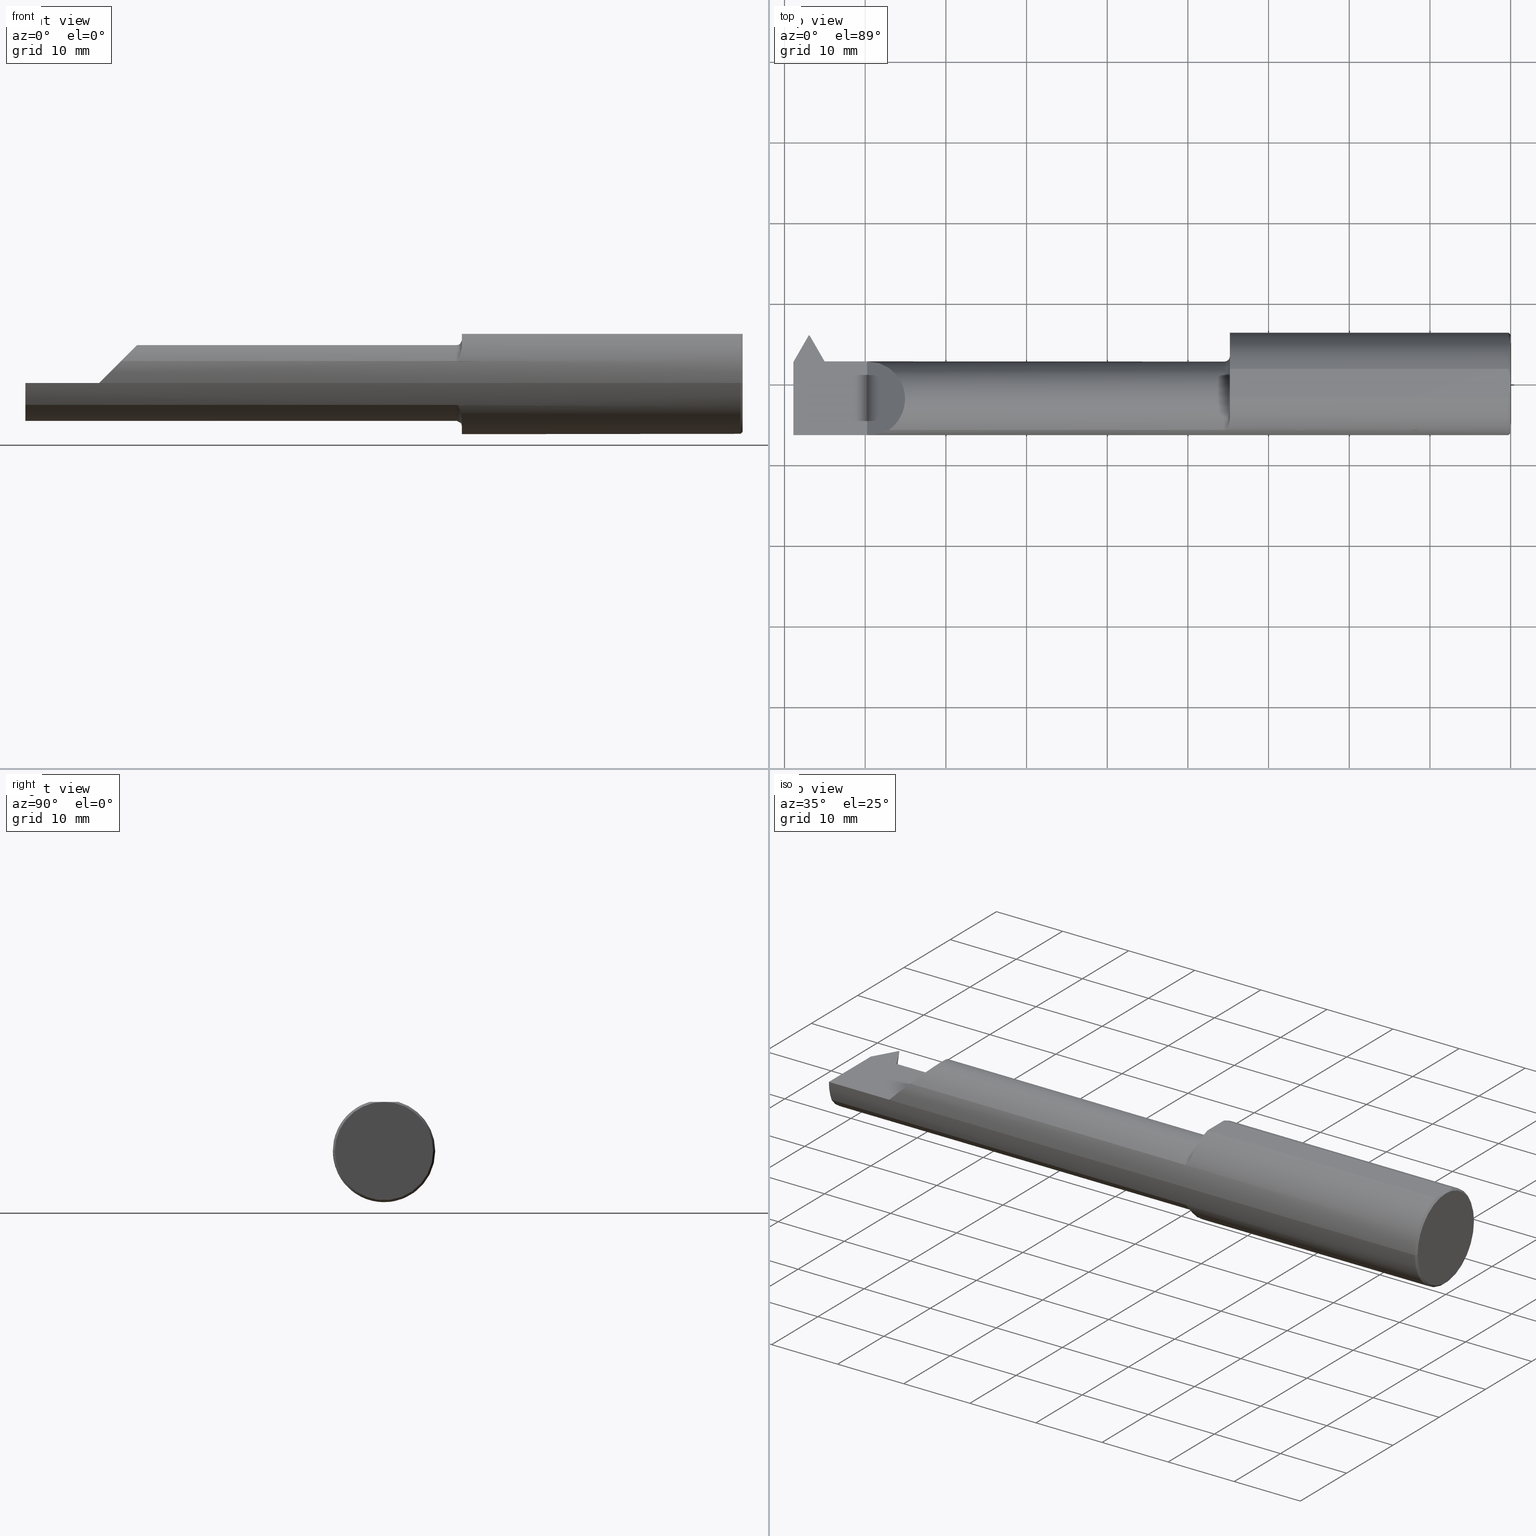
[diagram: canonical four-view strip — front | top / right | iso, engineering-drawing reading convention]
A machine part, canonical four-view strip (front | top / right | iso — engineering-drawing reading convention). The complete STEP part file that produces these views, byte-faithful:
ISO-10303-21;
HEADER;
FILE_DESCRIPTION (( 'STEP AP203' ),
    '1' );
FILE_NAME ('231972-LHTT4902000.STEP',
    '2025-01-28T21:52:15',
    ( '' ),
    ( '' ),
    'SwSTEP 2.0',
    'SolidWorks 2024',
    '' );
FILE_SCHEMA (( 'CONFIG_CONTROL_DESIGN' ));
ENDSEC;

DATA;
#1 = ORIENTED_EDGE ( 'NONE', *, *, #565, .F. ) ;
#2 = PLANE ( 'NONE',  #14 ) ;
#3 = CIRCLE ( 'NONE', #289, 0.1849999999999999978 ) ;
#4 = COORDINATED_UNIVERSAL_TIME_OFFSET ( 8, 0, .BEHIND. ) ;
#5 = FACE_OUTER_BOUND ( 'NONE', #344, .T. ) ;
#6 = EDGE_CURVE ( 'NONE', #586, #370, #164, .T. ) ;
#7 = ADVANCED_FACE ( 'NONE', ( #512 ), #231, .T. ) ;
#8 = DIRECTION ( 'NONE',  ( 0.000000000000000000, 1.000000000000000000, 0.000000000000000000 ) ) ;
#9 = AXIS2_PLACEMENT_3D ( 'NONE', #381, #457, #758 ) ;
#10 = PLANE ( 'NONE',  #853 ) ;
#11 = CARTESIAN_POINT ( 'NONE',  ( -1.370000000000000773, -0.1671052035161186000, -0.1859846937724914939 ) ) ;
#12 = DIRECTION ( 'NONE',  ( 0.000000000000000000, 1.000000000000000000, 1.406552993276529236E-16 ) ) ;
#13 = FACE_OUTER_BOUND ( 'NONE', #22, .T. ) ;
#14 = AXIS2_PLACEMENT_3D ( 'NONE', #488, #906, #269 ) ;
#15 = CARTESIAN_POINT ( 'NONE',  ( -3.342159741839021425, 0.09859512884738201588, -0.06435671898966838222 ) ) ;
#16 = CARTESIAN_POINT ( 'NONE',  ( -1.370000000000000329, -0.07485000000000020803, 0.000000000000000000 ) ) ;
#17 = FACE_OUTER_BOUND ( 'NONE', #599, .T. ) ;
#18 = CARTESIAN_POINT ( 'NONE',  ( -1.376159583778251871, -0.2047174793401234372, 0.1435375904730459007 ) ) ;
#19 = CIRCLE ( 'NONE', #526, 0.2498499999999999888 ) ;
#20 = ORIENTED_EDGE ( 'NONE', *, *, #670, .F. ) ;
#21 = CARTESIAN_POINT ( 'NONE',  ( -3.500000000000000000, 0.09158186431805868943, -0.05999999999999753447 ) ) ;
#22 = EDGE_LOOP ( 'NONE', ( #524, #30, #753, #865, #686, #114, #319 ) ) ;
#23 = ORIENTED_EDGE ( 'NONE', *, *, #819, .F. ) ;
#24 = CARTESIAN_POINT ( 'NONE',  ( -3.500000000000000000, 0.01864742636900898129, -0.1596346806379234096 ) ) ;
#25 = VECTOR ( 'NONE', #627, 39.37007874015748143 ) ;
#26 = ORIENTED_EDGE ( 'NONE', *, *, #134, .T. ) ;
#27 = CARTESIAN_POINT ( 'NONE',  ( -1.389912704619948869, -0.2245351419255100234, 0.1095897952907447931 ) ) ;
#28 = ORIENTED_EDGE ( 'NONE', *, *, #68, .F. ) ;
#29 = ADVANCED_FACE ( 'NONE', ( #506 ), #643, .T. ) ;
#30 = ORIENTED_EDGE ( 'NONE', *, *, #304, .T. ) ;
#31 = DIRECTION ( 'NONE',  ( -1.000000000000000000, -7.384505942868129093E-18, -0.000000000000000000 ) ) ;
#32 = CARTESIAN_POINT ( 'NONE',  ( 1.529890013834826959E-17, 3.673940397442054938E-16, 0.000000000000000000 ) ) ;
#33 = CC_DESIGN_PERSON_AND_ORGANIZATION_ASSIGNMENT ( #635, #617, ( #159 ) ) ;
#34 = PERSON_AND_ORGANIZATION ( #149, #270 ) ;
#35 = ORIENTED_EDGE ( 'NONE', *, *, #737, .T. ) ;
#36 = CARTESIAN_POINT ( 'NONE',  ( -3.419365604145484738, 0.2186548182260253936, -0.06000000000000065697 ) ) ;
#37 = DIRECTION ( 'NONE',  ( -1.224646799147351728E-16, 1.000000000000000000, 0.000000000000000000 ) ) ;
#38 = ORIENTED_EDGE ( 'NONE', *, *, #509, .T. ) ;
#39 = DIRECTION ( 'NONE',  ( -1.000000000000000000, -1.553500558300393113E-17, -0.000000000000000000 ) ) ;
#40 = ORIENTED_EDGE ( 'NONE', *, *, #819, .T. ) ;
#41 = CC_DESIGN_DATE_AND_TIME_ASSIGNMENT ( #884, #518, ( #703 ) ) ;
#42 = PLANE ( 'NONE',  #568 ) ;
#43 = DIRECTION ( 'NONE',  ( 0.000000000000000000, -1.000000000000000000, -1.406552993276529236E-16 ) ) ;
#44 = LENGTH_MEASURE_WITH_UNIT ( LENGTH_MEASURE( 0.02539999999999999897 ), #50 );
#45 = EDGE_LOOP ( 'NONE', ( #832, #477, #632, #674, #38, #165, #883, #602 ) ) ;
#46 = FACE_OUTER_BOUND ( 'NONE', #771, .T. ) ;
#47 = CONICAL_SURFACE ( 'NONE', #232, 0.2398500000000003685, 0.7853981633974208565 ) ;
#48 = PLANE ( 'NONE',  #9 ) ;
#49 = VECTOR ( 'NONE', #334, 39.37007874015748143 ) ;
#50 =( LENGTH_UNIT ( ) NAMED_UNIT ( * ) SI_UNIT ( $, .METRE. ) );
#51 = ORIENTED_EDGE ( 'NONE', *, *, #132, .F. ) ;
#52 = DIRECTION ( 'NONE',  ( -7.384505942868129093E-18, 1.000000000000000000, 0.000000000000000000 ) ) ;
#53 = ADVANCED_FACE ( 'NONE', ( #444 ), #738, .F. ) ;
#54 = DIRECTION ( 'NONE',  ( 9.638714421489209318E-19, -0.1305261922200518787, -0.9914448613738103822 ) ) ;
#55 = ORIENTED_EDGE ( 'NONE', *, *, #141, .T. ) ;
#56 = LINE ( 'NONE', #699, #173 ) ;
#57 = CARTESIAN_POINT ( 'NONE',  ( -0.01000000000000016674, 3.661693929450580693E-16, 0.000000000000000000 ) ) ;
#58 = VECTOR ( 'NONE', #126, 39.37007874015748143 ) ;
#59 = LINE ( 'NONE', #908, #350 ) ;
#60 = VERTEX_POINT ( 'NONE', #581 ) ;
#61 = ORIENTED_EDGE ( 'NONE', *, *, #756, .F. ) ;
#62 = LINE ( 'NONE', #841, #735 ) ;
#63 = DIRECTION ( 'NONE',  ( 7.384505942868129093E-18, -1.000000000000000000, 0.000000000000000000 ) ) ;
#64 = CARTESIAN_POINT ( 'NONE',  ( -3.342599165543727491, -0.002636603752403072088, -0.1850000000000000533 ) ) ;
#65 = VECTOR ( 'NONE', #683, 39.37007874015748143 ) ;
#66 = ORIENTED_EDGE ( 'NONE', *, *, #122, .F. ) ;
#67 = CARTESIAN_POINT ( 'NONE',  ( -3.299999999999999822, 0.2186548182260257545, -0.05999999999999999778 ) ) ;
#68 = EDGE_CURVE ( 'NONE', #502, #454, #99, .T. ) ;
#69 = DIRECTION ( 'NONE',  ( 0.03381283892699543658, 0.3088402930417901704, 0.9505126855111183382 ) ) ;
#70 = EDGE_CURVE ( 'NONE', #476, #840, #374, .T. ) ;
#71 = VECTOR ( 'NONE', #757, 39.37007874015748854 ) ;
#72 = AXIS2_PLACEMENT_3D ( 'NONE', #839, #830, #549 ) ;
#73 = CARTESIAN_POINT ( 'NONE',  ( -1.393766764954792459, -0.2258019038076130303, -0.1069510296203706190 ) ) ;
#74 = DIRECTION ( 'NONE',  ( -4.746668923732218224E-18, 0.6427876096865351441, 0.7660444431189815662 ) ) ;
#75 =( GEOMETRIC_REPRESENTATION_CONTEXT ( 3 ) GLOBAL_UNCERTAINTY_ASSIGNED_CONTEXT ( ( #248 ) ) GLOBAL_UNIT_ASSIGNED_CONTEXT ( ( #744, #185, #100 ) ) REPRESENTATION_CONTEXT ( 'NONE', 'WORKASPACE' ) );
#76 = DIRECTION ( 'NONE',  ( -1.000000000000000000, -7.384505942868129093E-18, 0.000000000000000000 ) ) ;
#77 = VECTOR ( 'NONE', #254, 39.37007874015748143 ) ;
#78 = ADVANCED_FACE ( 'NONE', ( #271 ), #189, .F. ) ;
#79 = CARTESIAN_POINT ( 'NONE',  ( -3.500000000000000000, -0.2258019038076149176, -0.1069510296203672051 ) ) ;
#80 = ADVANCED_FACE ( 'NONE', ( #195 ), #48, .F. ) ;
#81 = MANIFOLD_SOLID_BREP ( 'Cut-Sweep1', #706 ) ;
#82 = FACE_OUTER_BOUND ( 'NONE', #649, .T. ) ;
#83 = DIRECTION ( 'NONE',  ( -1.000000000000000000, -1.224646799147351728E-16, 0.000000000000000000 ) ) ;
#84 = CARTESIAN_POINT ( 'NONE',  ( -3.033048970379629949, -0.2258019038076140572, 0.1069510296203688288 ) ) ;
#85 = CARTESIAN_POINT ( 'NONE',  ( -3.342599165543727491, -0.07485000000000019416, -0.1849999999999999978 ) ) ;
#86 = CARTESIAN_POINT ( 'NONE',  ( -2.463003025044359529, -1.422015459524233361, 0.000000000000000000 ) ) ;
#87 = DIRECTION ( 'NONE',  ( 0.000000000000000000, -0.6427876096865350330, -0.7660444431189815662 ) ) ;
#88 = ORIENTED_EDGE ( 'NONE', *, *, #222, .T. ) ;
#89 = CARTESIAN_POINT ( 'NONE',  ( -2.368799582771863754, -0.2258019038076140295, 0.1069510296203688010 ) ) ;
#90 = VECTOR ( 'NONE', #54, 39.37007874015748143 ) ;
#91 = ORIENTED_EDGE ( 'NONE', *, *, #831, .F. ) ;
#92 = ORIENTED_EDGE ( 'NONE', *, *, #144, .T. ) ;
#93 = CYLINDRICAL_SURFACE ( 'NONE', #356, 0.2498499999999999888 ) ;
#94 = EDGE_CURVE ( 'NONE', #822, #840, #180, .T. ) ;
#95 = PERSON_AND_ORGANIZATION ( #149, #270 ) ;
#96 = CIRCLE ( 'NONE', #554, 0.2498499999999999888 ) ;
#97 = VERTEX_POINT ( 'NONE', #763 ) ;
#98 = DIRECTION ( 'NONE',  ( 0.000000000000000000, 1.000000000000000000, 0.000000000000000000 ) ) ;
#99 = LINE ( 'NONE', #440, #605 ) ;
#100 =( NAMED_UNIT ( * ) SI_UNIT ( $, .STERADIAN. ) SOLID_ANGLE_UNIT ( ) );
#101 = ORIENTED_EDGE ( 'NONE', *, *, #172, .F. ) ;
#102 = DIRECTION ( 'NONE',  ( 1.224646799147367998E-16, -1.000000000000000000, 0.000000000000000000 ) ) ;
#103 = EDGE_CURVE ( 'NONE', #895, #466, #694, .T. ) ;
#104 = EDGE_LOOP ( 'NONE', ( #726, #504, #869 ) ) ;
#105 = CALENDAR_DATE ( 2025, 28, 1 ) ;
#106 = VERTEX_POINT ( 'NONE', #824 ) ;
#107 = PLANE ( 'NONE',  #501 ) ;
#108 = PLANE ( 'NONE',  #859 ) ;
#109 = LINE ( 'NONE', #529, #117 ) ;
#110 = ORIENTED_EDGE ( 'NONE', *, *, #6, .F. ) ;
#111 = CARTESIAN_POINT ( 'NONE',  ( -3.033048970379629949, -0.2258019038076140572, 0.1069510296203688288 ) ) ;
#112 = AXIS2_PLACEMENT_3D ( 'NONE', #845, #846, #8 ) ;
#113 = FACE_OUTER_BOUND ( 'NONE', #432, .T. ) ;
#114 = ORIENTED_EDGE ( 'NONE', *, *, #416, .T. ) ;
#115 = DIRECTION ( 'NONE',  ( 1.000000000000000000, 0.000000000000000000, 0.000000000000000000 ) ) ;
#116 = EDGE_LOOP ( 'NONE', ( #755, #310, #336, #577 ) ) ;
#117 = VECTOR ( 'NONE', #39, 39.37007874015748143 ) ;
#118 = AXIS2_PLACEMENT_3D ( 'NONE', #355, #327, #429 ) ;
#119 = ORIENTED_EDGE ( 'NONE', *, *, #367, .T. ) ;
#120 = VERTEX_POINT ( 'NONE', #480 ) ;
#121 = AXIS2_PLACEMENT_3D ( 'NONE', #154, #431, #861 ) ;
#122 = EDGE_CURVE ( 'NONE', #120, #466, #218, .T. ) ;
#123 = DIRECTION ( 'NONE',  ( 0.4999999999999886202, 0.8660254037844452579, 0.000000000000000000 ) ) ;
#124 = CARTESIAN_POINT ( 'NONE',  ( -1.370000000000000329, 0.2498500000000001831, 0.000000000000000000 ) ) ;
#125 = ORIENTED_EDGE ( 'NONE', *, *, #688, .F. ) ;
#126 = DIRECTION ( 'NONE',  ( 1.000000000000000000, 7.384505942868129093E-18, 0.000000000000000000 ) ) ;
#127 = CARTESIAN_POINT ( 'NONE',  ( -3.286604990854926633, 0.05415582531120159693, -0.4253179826811080422 ) ) ;
#128 = LINE ( 'NONE', #702, #65 ) ;
#129 = EDGE_LOOP ( 'NONE', ( #592, #119, #618, #538 ) ) ;
#130 = ORIENTED_EDGE ( 'NONE', *, *, #192, .T. ) ;
#131 = CARTESIAN_POINT ( 'NONE',  ( -1.387712610578066830, -0.2232268177254515262, -0.1122435923601519947 ) ) ;
#132 = EDGE_CURVE ( 'NONE', #892, #97, #264, .T. ) ;
#133 = VECTOR ( 'NONE', #83, 39.37007874015748143 ) ;
#134 = EDGE_CURVE ( 'NONE', #822, #106, #601, .T. ) ;
#135 = CARTESIAN_POINT ( 'NONE',  ( 5.327303674168286333E-16, -0.01184236993541495399, 0.2398500000000000631 ) ) ;
#136 = PLANE ( 'NONE',  #188 ) ;
#137 = CARTESIAN_POINT ( 'NONE',  ( -3.423000000000000043, 1.086665052882533899, 0.9669522764211785359 ) ) ;
#138 = DIRECTION ( 'NONE',  ( 1.000000000000000000, 7.384505942868129093E-18, 0.000000000000000000 ) ) ;
#139 = AXIS2_PLACEMENT_3D ( 'NONE', #868, #228, #160 ) ;
#140 = AXIS2_PLACEMENT_3D ( 'NONE', #594, #246, #578 ) ;
#141 = EDGE_CURVE ( 'NONE', #722, #840, #621, .T. ) ;
#142 = PLANE ( 'NONE',  #464 ) ;
#143 = DIRECTION ( 'NONE',  ( -0.7071067811865522357, 0.000000000000000000, -0.7071067811865427988 ) ) ;
#144 = EDGE_CURVE ( 'NONE', #808, #904, #540, .T. ) ;
#145 = CC_DESIGN_APPROVAL ( #826, ( #741 ) ) ;
#146 = LINE ( 'NONE', #423, #604 ) ;
#147 = LINE ( 'NONE', #622, #507 ) ;
#148 = DIRECTION ( 'NONE',  ( 0.5000000000000024425, -0.8660254037844371533, 0.000000000000000000 ) ) ;
#149 = PERSON ( 'UNSPECIFIED', 'UNSPECIFIED', 'UNSPECIFIED', ('UNSPECIFIED'), ('UNSPECIFIED'), ('UNSPECIFIED') ) ;
#150 = LINE ( 'NONE', #428, #411 ) ;
#151 = CARTESIAN_POINT ( 'NONE',  ( -3.342599165543727491, 0.1350588211740033073, -0.02090098266016694739 ) ) ;
#152 = DIRECTION ( 'NONE',  ( -1.000000000000000000, -1.224646799147367998E-16, 0.000000000000000000 ) ) ;
#153 = VECTOR ( 'NONE', #807, 39.37007874015748143 ) ;
#154 = CARTESIAN_POINT ( 'NONE',  ( -3.500000000000000000, 0.2748500000000003718, 0.2398500000000001187 ) ) ;
#155 = APPLICATION_CONTEXT ( 'configuration controlled 3d designs of mechanical parts and assemblies' ) ;
#156 = EDGE_LOOP ( 'NONE', ( #739, #255, #20, #66 ) ) ;
#157 = EDGE_CURVE ( 'NONE', #696, #302, #343, .T. ) ;
#158 = VERTEX_POINT ( 'NONE', #838 ) ;
#159 = PRODUCT_DEFINITION_FORMATION_WITH_SPECIFIED_SOURCE ( 'ANY', '', #708, .NOT_KNOWN. ) ;
#160 = DIRECTION ( 'NONE',  ( 0.000000000000000000, -0.1305261922200518787, -0.9914448613738103822 ) ) ;
#161 = ADVANCED_FACE ( 'NONE', ( #113 ), #108, .F. ) ;
#162 = ORIENTED_EDGE ( 'NONE', *, *, #688, .T. ) ;
#163 = CARTESIAN_POINT ( 'NONE',  ( -3.139999999999999680, 0.1101499999999999840, 0.000000000000000000 ) ) ;
#164 = CIRCLE ( 'NONE', #775, 0.2398500000000003685 ) ;
#165 = ORIENTED_EDGE ( 'NONE', *, *, #582, .F. ) ;
#166 = LINE ( 'NONE', #351, #365 ) ;
#167 = PRODUCT_RELATED_PRODUCT_CATEGORY ( 'detail', '', ( #708 ) ) ;
#168 = VERTEX_POINT ( 'NONE', #64 ) ;
#169 = CARTESIAN_POINT ( 'NONE',  ( 2.937315347754966940E-17, -0.2398500000000000076, 0.000000000000000000 ) ) ;
#170 = DIRECTION ( 'NONE',  ( 0.000000000000000000, 0.7660444431189815662, -0.6427876096865351441 ) ) ;
#171 = CARTESIAN_POINT ( 'NONE',  ( 0.000000000000000000, 3.673940397442054938E-16, 0.000000000000000000 ) ) ;
#172 = EDGE_CURVE ( 'NONE', #895, #891, #128, .T. ) ;
#173 = VECTOR ( 'NONE', #339, 39.37007874015748143 ) ;
#174 = VERTEX_POINT ( 'NONE', #747 ) ;
#175 = CARTESIAN_POINT ( 'NONE',  ( -1.386631274780703027, -0.2222865629965296297, 0.1140986214717635699 ) ) ;
#176 = EDGE_LOOP ( 'NONE', ( #438, #551, #675, #875, #606, #61, #575, #224, #379, #191, #797, #544, #550, #383 ) ) ;
#177 = APPROVAL_ROLE ( '' ) ;
#178 = ORIENTED_EDGE ( 'NONE', *, *, #306, .T. ) ;
#179 = CARTESIAN_POINT ( 'NONE',  ( -0.01000000000000016674, -0.06997856814768303735, 0.2398500000000000631 ) ) ;
#180 = LINE ( 'NONE', #907, #714 ) ;
#181 = ORIENTED_EDGE ( 'NONE', *, *, #872, .F. ) ;
#182 = DIRECTION ( 'NONE',  ( 1.224646799147351728E-16, -1.000000000000000000, 0.000000000000000000 ) ) ;
#183 = CARTESIAN_POINT ( 'NONE',  ( -0.006819279375478341267, 0.05862219048703214835, 0.2398500000000000631 ) ) ;
#184 = ORIENTED_EDGE ( 'NONE', *, *, #172, .T. ) ;
#185 =( NAMED_UNIT ( * ) PLANE_ANGLE_UNIT ( ) SI_UNIT ( $, .RADIAN. ) );
#186 = VERTEX_POINT ( 'NONE', #342 ) ;
#187 = CARTESIAN_POINT ( 'NONE',  ( -3.336295443407198746, 0.1038462778634677008, -0.04788152334401690746 ) ) ;
#188 = AXIS2_PLACEMENT_3D ( 'NONE', #413, #76, #63 ) ;
#189 = PLANE ( 'NONE',  #727 ) ;
#190 = APPLICATION_PROTOCOL_DEFINITION ( 'international standard', 'config_control_design', 1994, #155 ) ;
#191 = ORIENTED_EDGE ( 'NONE', *, *, #469, .F. ) ;
#192 = EDGE_CURVE ( 'NONE', #106, #663, #523, .T. ) ;
#193 = CARTESIAN_POINT ( 'NONE',  ( -3.500000000000000000, 0.1101500000000000257, 0.000000000000000000 ) ) ;
#194 = APPROVAL_PERSON_ORGANIZATION ( #266, #826, #709 ) ;
#195 = FACE_OUTER_BOUND ( 'NONE', #45, .T. ) ;
#196 = DIRECTION ( 'NONE',  ( 1.000000000000000000, 1.224646799147351728E-16, -0.000000000000000000 ) ) ;
#197 = APPROVAL_DATE_TIME ( #776, #826 ) ;
#198 = ORIENTED_EDGE ( 'NONE', *, *, #491, .F. ) ;
#199 = PLANE ( 'NONE',  #792 ) ;
#200 = LINE ( 'NONE', #547, #25 ) ;
#201 = CARTESIAN_POINT ( 'NONE',  ( -2.671496974955669401, 1.542389497629879980, 0.000000000000000000 ) ) ;
#202 = FACE_OUTER_BOUND ( 'NONE', #520, .T. ) ;
#203 = ORIENTED_EDGE ( 'NONE', *, *, #670, .T. ) ;
#204 = FACE_OUTER_BOUND ( 'NONE', #873, .T. ) ;
#205 = CARTESIAN_POINT ( 'NONE',  ( -1.390683622228453098, -0.2249211699927296249, -0.1087936126742942017 ) ) ;
#206 = TOROIDAL_SURFACE ( 'NONE', #770, 0.2100000000000004363, 0.02499999999999992853 ) ;
#207 = CC_DESIGN_PERSON_AND_ORGANIZATION_ASSIGNMENT ( #34, #238, ( #703 ) ) ;
#208 = DIRECTION ( 'NONE',  ( 0.9914448613738103822, 7.321330470840973281E-18, 0.1305261922200518787 ) ) ;
#209 = CIRCLE ( 'NONE', #760, 0.2100000000000004363 ) ;
#210 = DIRECTION ( 'NONE',  ( -0.1294283079955640403, 0.1294283079955585170, 0.9831056027603608527 ) ) ;
#211 = EDGE_CURVE ( 'NONE', #611, #454, #829, .T. ) ;
#212 = CARTESIAN_POINT ( 'NONE',  ( -0.004274624415784134858, -0.04692581729597348345, 0.2398500000000001464 ) ) ;
#213 = CARTESIAN_POINT ( 'NONE',  ( -3.500000000000000000, 0.06997856814768327327, 0.2398500000000000631 ) ) ;
#214 = AXIS2_PLACEMENT_3D ( 'NONE', #600, #546, #835 ) ;
#215 = CARTESIAN_POINT ( 'NONE',  ( -1.370394743209660371, -0.1740183947823799038, -0.1795343264900133018 ) ) ;
#216 = FACE_OUTER_BOUND ( 'NONE', #534, .T. ) ;
#217 = LOCAL_TIME ( 13, 52, 15.00000000000000000, #314 ) ;
#218 = CIRCLE ( 'NONE', #436, 0.2498499999999999888 ) ;
#219 = DIRECTION ( 'NONE',  ( 1.000000000000000000, 4.268512490100340227E-14, 0.000000000000000000 ) ) ;
#220 = PLANE ( 'NONE',  #799 ) ;
#221 = LINE ( 'NONE', #24, #244 ) ;
#222 = EDGE_CURVE ( 'NONE', #502, #158, #533, .T. ) ;
#223 = CARTESIAN_POINT ( 'NONE',  ( -1.378055368518434243, -0.2099128102803848595, 0.1358187170865945703 ) ) ;
#224 = ORIENTED_EDGE ( 'NONE', *, *, #582, .T. ) ;
#225 = EDGE_CURVE ( 'NONE', #895, #871, #19, .T. ) ;
#226 = CIRCLE ( 'NONE', #112, 0.2498499999999999888 ) ;
#227 = AXIS2_PLACEMENT_3D ( 'NONE', #285, #272, #421 ) ;
#228 = DIRECTION ( 'NONE',  ( 4.231994774019909875E-14, -0.9914448613738103822, 0.1305261922200518787 ) ) ;
#229 = ORIENTED_EDGE ( 'NONE', *, *, #400, .T. ) ;
#230 = CARTESIAN_POINT ( 'NONE',  ( -3.500000000000000000, -0.07485000000000022191, 0.000000000000000000 ) ) ;
#231 = PLANE ( 'NONE',  #628 ) ;
#232 = AXIS2_PLACEMENT_3D ( 'NONE', #171, #666, #470 ) ;
#233 = LINE ( 'NONE', #295, #445 ) ;
#234 = ORIENTED_EDGE ( 'NONE', *, *, #387, .T. ) ;
#235 = FACE_OUTER_BOUND ( 'NONE', #324, .T. ) ;
#236 = EDGE_LOOP ( 'NONE', ( #404, #584, #184, #245, #279 ) ) ;
#237 = EDGE_CURVE ( 'NONE', #692, #904, #843, .T. ) ;
#238 = PERSON_AND_ORGANIZATION_ROLE ( 'creator' ) ;
#239 = ORIENTED_EDGE ( 'NONE', *, *, #103, .T. ) ;
#240 = EDGE_CURVE ( 'NONE', #871, #60, #209, .T. ) ;
#241 = CARTESIAN_POINT ( 'NONE',  ( -3.500000000000000000, -6.123233995736759873E-17, 0.000000000000000000 ) ) ;
#242 = ORIENTED_EDGE ( 'NONE', *, *, #240, .T. ) ;
#243 = CIRCLE ( 'NONE', #881, 0.2398500000000003685 ) ;
#244 = VECTOR ( 'NONE', #287, 39.37007874015748143 ) ;
#245 = ORIENTED_EDGE ( 'NONE', *, *, #367, .F. ) ;
#246 = DIRECTION ( 'NONE',  ( 1.000000000000000000, 1.224646799147351728E-16, -0.000000000000000000 ) ) ;
#247 = ORIENTED_EDGE ( 'NONE', *, *, #885, .F. ) ;
#248 = UNCERTAINTY_MEASURE_WITH_UNIT (LENGTH_MEASURE( 1.000000000000000082E-05 ), #744, 'distance_accuracy_value', 'NONE');
#249 = LINE ( 'NONE', #821, #341 ) ;
#250 = B_SPLINE_CURVE_WITH_KNOTS ( 'NONE', 3,
 ( #415, #73, #553, #205, #773, #131, #705, #345, #633, #499, #573, #497, #441, #215, #11, #791 ),
 .UNSPECIFIED., .F., .F.,
 ( 4, 2, 2, 2, 2, 2, 2, 4 ),
 ( 1.967731640786029342E-07, 9.266832530623622752E-05, 0.0001851398774483938546, 0.0003700829817327091088, 0.0007399691903013483991, 0.001479741607438627088, 0.002219514024575906970, 0.002959286441713187069 ),
 .UNSPECIFIED. ) ;
#251 = ORIENTED_EDGE ( 'NONE', *, *, #802, .T. ) ;
#252 = CARTESIAN_POINT ( 'NONE',  ( -3.139999999999999680, -0.2500000000000000000, 0.000000000000000000 ) ) ;
#253 = CC_DESIGN_SECURITY_CLASSIFICATION ( #741, ( #159 ) ) ;
#254 = DIRECTION ( 'NONE',  ( -0.4999999999999875655, -0.8660254037844458130, -1.035788934626037736E-16 ) ) ;
#255 = ORIENTED_EDGE ( 'NONE', *, *, #458, .F. ) ;
#256 = LINE ( 'NONE', #467, #71 ) ;
#257 = DIRECTION ( 'NONE',  ( 3.058020071632200868E-16, 0.6427876096865347000, 0.7660444431189817882 ) ) ;
#258 = EDGE_CURVE ( 'NONE', #97, #891, #425, .T. ) ;
#259 = ORIENTED_EDGE ( 'NONE', *, *, #416, .F. ) ;
#260 = ORIENTED_EDGE ( 'NONE', *, *, #458, .T. ) ;
#261 = DIRECTION ( 'NONE',  ( 1.000000000000000000, 1.224646799147351728E-16, -0.000000000000000000 ) ) ;
#262 = VECTOR ( 'NONE', #12, 39.37007874015748143 ) ;
#263 = CARTESIAN_POINT ( 'NONE',  ( -2.671496974955669401, 1.542389497629879980, 0.000000000000000000 ) ) ;
#264 = B_SPLINE_CURVE_WITH_KNOTS ( 'NONE', 3,
 ( #912, #769, #894, #629, #183, #462 ),
 .UNSPECIFIED., .F., .F.,
 ( 4, 2, 4 ),
 ( 0.004673882328079624962, 0.005569206097324359665, 0.006464529866569094368 ),
 .UNSPECIFIED. ) ;
#265 = DIRECTION ( 'NONE',  ( 7.384505942868129093E-18, -1.000000000000000000, 0.000000000000000000 ) ) ;
#266 = PERSON_AND_ORGANIZATION ( #149, #270 ) ;
#267 = VERTEX_POINT ( 'NONE', #79 ) ;
#268 = DIRECTION ( 'NONE',  ( -1.224646799147351728E-16, 1.000000000000000000, 0.000000000000000000 ) ) ;
#269 = DIRECTION ( 'NONE',  ( -7.384505942868129093E-18, 1.000000000000000000, 0.000000000000000000 ) ) ;
#270 = ORGANIZATION ( 'UNSPECIFIED', 'UNSPECIFIED', '' ) ;
#271 = FACE_OUTER_BOUND ( 'NONE', #742, .T. ) ;
#272 = DIRECTION ( 'NONE',  ( 1.000000000000000000, 7.384505942868129093E-18, 0.000000000000000000 ) ) ;
#273 = EDGE_CURVE ( 'NONE', #692, #810, #147, .T. ) ;
#274 = ORIENTED_EDGE ( 'NONE', *, *, #141, .F. ) ;
#275 = CARTESIAN_POINT ( 'NONE',  ( -3.342159741839021425, -0.07485000000000022191, 0.000000000000000000 ) ) ;
#276 = DIRECTION ( 'NONE',  ( -1.000000000000000000, -7.384505942868129093E-18, -0.000000000000000000 ) ) ;
#277 = ADVANCED_FACE ( 'NONE', ( #202 ), #220, .F. ) ;
#278 = DIRECTION ( 'NONE',  ( 0.000000000000000000, -1.000000000000000000, 8.881784197001252323E-15 ) ) ;
#279 = ORIENTED_EDGE ( 'NONE', *, *, #349, .F. ) ;
#280 = CARTESIAN_POINT ( 'NONE',  ( -0.006805225572347237128, -0.05857201308550635810, 0.2398500000000000631 ) ) ;
#281 = LINE ( 'NONE', #777, #536 ) ;
#282 = PERSON_AND_ORGANIZATION ( #149, #270 ) ;
#283 = VECTOR ( 'NONE', #608, 39.37007874015748854 ) ;
#284 = CARTESIAN_POINT ( 'NONE',  ( -0.0008810604711148443176, -0.02359329477404694536, 0.2398500000000000631 ) ) ;
#285 = CARTESIAN_POINT ( 'NONE',  ( -1.370000000000000329, 1.996174282610182294E-16, 0.000000000000000000 ) ) ;
#286 = ADVANCED_FACE ( 'NONE', ( #695 ), #567, .T. ) ;
#287 = DIRECTION ( 'NONE',  ( 1.000000000000000000, 7.384505942868129093E-18, 0.000000000000000000 ) ) ;
#288 = FACE_OUTER_BOUND ( 'NONE', #116, .T. ) ;
#289 = AXIS2_PLACEMENT_3D ( 'NONE', #816, #693, #687 ) ;
#290 = CARTESIAN_POINT ( 'NONE',  ( -3.352159741839021656, -0.002636603752402790195, -0.1849999999999998590 ) ) ;
#291 = DIRECTION ( 'NONE',  ( 1.000000000000000000, 1.224646799147351728E-16, -0.000000000000000000 ) ) ;
#292 = B_SPLINE_CURVE_WITH_KNOTS ( 'NONE', 3,
 ( #559, #280, #212, #284, #135, #780 ),
 .UNSPECIFIED., .F., .F.,
 ( 4, 2, 4 ),
 ( 0.002885180213238084518, 0.003779531270658854740, 0.004673882328079624962 ),
 .UNSPECIFIED. ) ;
#293 = CARTESIAN_POINT ( 'NONE',  ( -3.342159741839021425, 0.9639661265264252155, 0.9669522764211785359 ) ) ;
#294 = CARTESIAN_POINT ( 'NONE',  ( -1.390717781145547338, -0.2249352693140822534, 0.1087643826525841045 ) ) ;
#295 = CARTESIAN_POINT ( 'NONE',  ( -2.664656110512727771, 1.538439922702257601, -0.06000000000000454276 ) ) ;
#296 = VERTEX_POINT ( 'NONE', #124 ) ;
#297 = LINE ( 'NONE', #89, #825 ) ;
#298 = DIRECTION ( 'NONE',  ( 0.5000000000000025535, -0.8660254037844371533, 0.000000000000000000 ) ) ;
#299 = CIRCLE ( 'NONE', #579, 0.1850000000000000533 ) ;
#300 = CIRCLE ( 'NONE', #140, 0.2398500000000003685 ) ;
#301 = PLANE ( 'NONE',  #139 ) ;
#302 = VERTEX_POINT ( 'NONE', #489 ) ;
#303 = CARTESIAN_POINT ( 'NONE',  ( -1.392642439405626043, -0.2255733860777255073, 0.1074346955532793357 ) ) ;
#304 = EDGE_CURVE ( 'NONE', #186, #120, #59, .T. ) ;
#305 = ORIENTED_EDGE ( 'NONE', *, *, #70, .T. ) ;
#306 = EDGE_CURVE ( 'NONE', #663, #502, #858, .T. ) ;
#307 = APPROVAL_ROLE ( '' ) ;
#308 = ORIENTED_EDGE ( 'NONE', *, *, #473, .T. ) ;
#309 = CARTESIAN_POINT ( 'NONE',  ( 0.000000000000000000, 3.673940397442054938E-16, 0.000000000000000000 ) ) ;
#310 = ORIENTED_EDGE ( 'NONE', *, *, #211, .T. ) ;
#311 = EDGE_LOOP ( 'NONE', ( #1, #28, #88, #515 ) ) ;
#312 = DIRECTION ( 'NONE',  ( -1.000000000000000000, -1.224646799147367998E-16, 0.000000000000000000 ) ) ;
#313 = ORIENTED_EDGE ( 'NONE', *, *, #387, .F. ) ;
#314 = COORDINATED_UNIVERSAL_TIME_OFFSET ( 8, 0, .BEHIND. ) ;
#315 = CONICAL_SURFACE ( 'NONE', #793, 0.2398500000000003685, 0.7853981633974208565 ) ;
#316 = VERTEX_POINT ( 'NONE', #782 ) ;
#317 = DIRECTION ( 'NONE',  ( 0.000000000000000000, -0.6427876096865350330, -0.7660444431189815662 ) ) ;
#318 = CARTESIAN_POINT ( 'NONE',  ( -5.793904011180277080E-33, 3.119473511487017836E-16, 0.2398500000000000631 ) ) ;
#319 = ORIENTED_EDGE ( 'NONE', *, *, #469, .T. ) ;
#320 = FACE_OUTER_BOUND ( 'NONE', #691, .T. ) ;
#321 = AXIS2_PLACEMENT_3D ( 'NONE', #378, #152, #430 ) ;
#322 = ADVANCED_FACE ( 'NONE', ( #642 ), #10, .F. ) ;
#323 = CARTESIAN_POINT ( 'NONE',  ( -3.500000000000000000, -0.06997856814768346756, 0.2398500000000000631 ) ) ;
#324 = EDGE_LOOP ( 'NONE', ( #679, #110, #308, #820 ) ) ;
#325 = CARTESIAN_POINT ( 'NONE',  ( -3.338354342563406796, 0.1080367062739653883, -0.03224263161056347554 ) ) ;
#326 = CARTESIAN_POINT ( 'NONE',  ( -1.395000000000000240, -0.07485000000000020803, 0.000000000000000000 ) ) ;
#327 = DIRECTION ( 'NONE',  ( -0.7985882202808608499, 0.4610651239508039012, -0.3868795754558221889 ) ) ;
#328 = ORIENTED_EDGE ( 'NONE', *, *, #522, .F. ) ;
#329 = PERSON_AND_ORGANIZATION ( #149, #270 ) ;
#330 = ORIENTED_EDGE ( 'NONE', *, *, #630, .F. ) ;
#331 = DIRECTION ( 'NONE',  ( 0.5000000000000013323, -0.8660254037844377084, -9.251768665033344657E-15 ) ) ;
#332 = VECTOR ( 'NONE', #612, 39.37007874015748143 ) ;
#333 = EDGE_CURVE ( 'NONE', #168, #806, #788, .T. ) ;
#334 = DIRECTION ( 'NONE',  ( -3.118273268708853569E-17, 0.2546263355997762656, 0.9670395179200435010 ) ) ;
#335 = DIRECTION ( 'NONE',  ( 1.000000000000000000, 7.384505942868129093E-18, 0.000000000000000000 ) ) ;
#336 = ORIENTED_EDGE ( 'NONE', *, *, #565, .T. ) ;
#337 = SHAPE_DEFINITION_REPRESENTATION ( #494, #496 ) ;
#338 = ORIENTED_EDGE ( 'NONE', *, *, #556, .T. ) ;
#339 = DIRECTION ( 'NONE',  ( -1.000000000000000000, -7.384505942868129093E-18, -0.000000000000000000 ) ) ;
#340 = LINE ( 'NONE', #410, #664 ) ;
#341 = VECTOR ( 'NONE', #805, 39.37007874015748143 ) ;
#342 = CARTESIAN_POINT ( 'NONE',  ( -3.139999999999999680, -0.2498500000000000443, 0.000000000000000000 ) ) ;
#343 = CIRCLE ( 'NONE', #685, 0.1850000000000004974 ) ;
#344 = EDGE_LOOP ( 'NONE', ( #745, #181, #330, #23 ) ) ;
#345 = CARTESIAN_POINT ( 'NONE',  ( -1.383599192740056827, -0.2192187664759567278, -0.1199465908399910824 ) ) ;
#346 = DIRECTION ( 'NONE',  ( 0.000000000000000000, -0.6427876096865348110, -0.7660444431189817882 ) ) ;
#347 = DIRECTION ( 'NONE',  ( 0.000000000000000000, 1.000000000000000000, 0.000000000000000000 ) ) ;
#348 = CC_DESIGN_APPROVAL ( #422, ( #159 ) ) ;
#349 = EDGE_CURVE ( 'NONE', #60, #296, #596, .T. ) ;
#350 = VECTOR ( 'NONE', #291, 39.37007874015748143 ) ;
#351 = CARTESIAN_POINT ( 'NONE',  ( -4.701766507851613563E-15, 0.1101500000001426616, 0.000000000000000000 ) ) ;
#352 = CARTESIAN_POINT ( 'NONE',  ( 1.529890013834826959E-17, 3.673940397442054938E-16, 0.000000000000000000 ) ) ;
#353 = VECTOR ( 'NONE', #657, 39.37007874015748143 ) ;
#354 = DIRECTION ( 'NONE',  ( 1.000000000000000000, 1.553500558300392805E-17, 1.292837684806871850E-33 ) ) ;
#355 = CARTESIAN_POINT ( 'NONE',  ( -3.499999999999999112, 0.9532971406997272634, 0.9669522764211785359 ) ) ;
#356 = AXIS2_PLACEMENT_3D ( 'NONE', #369, #734, #98 ) ;
#357 = ADVANCED_FACE ( 'NONE', ( #216 ), #206, .F. ) ;
#358 = CARTESIAN_POINT ( 'NONE',  ( -3.342599165543727491, 0.01864742636900955375, -0.1596346806379227434 ) ) ;
#359 = APPROVAL ( #748, 'UNSPECIFIED' ) ;
#360 = ORIENTED_EDGE ( 'NONE', *, *, #132, .T. ) ;
#361 = CARTESIAN_POINT ( 'NONE',  ( -3.299999999999999822, 0.2186548182260257545, -0.05999999999999999778 ) ) ;
#362 = ORIENTED_EDGE ( 'NONE', *, *, #333, .T. ) ;
#363 = LINE ( 'NONE', #169, #418 ) ;
#364 = EDGE_LOOP ( 'NONE', ( #827, #328 ) ) ;
#365 = VECTOR ( 'NONE', #219, 39.37007874015748143 ) ;
#366 = CARTESIAN_POINT ( 'NONE',  ( -3.139999999999999680, 0.1101499999999999840, 0.000000000000000000 ) ) ;
#367 = EDGE_CURVE ( 'NONE', #296, #891, #719, .T. ) ;
#368 = ORIENTED_EDGE ( 'NONE', *, *, #485, .T. ) ;
#369 = CARTESIAN_POINT ( 'NONE',  ( -3.500000000000000000, -6.123233995736759873E-17, 0.000000000000000000 ) ) ;
#370 = VERTEX_POINT ( 'NONE', #541 ) ;
#371 = PERSON_AND_ORGANIZATION ( #149, #270 ) ;
#372 = ORIENTED_EDGE ( 'NONE', *, *, #456, .T. ) ;
#373 = LINE ( 'NONE', #668, #844 ) ;
#374 = LINE ( 'NONE', #613, #77 ) ;
#375 = APPROVAL_PERSON_ORGANIZATION ( #814, #422, #177 ) ;
#376 = ORIENTED_EDGE ( 'NONE', *, *, #258, .T. ) ;
#377 = CARTESIAN_POINT ( 'NONE',  ( -1.369999999999982121, -0.1671615771988661792, 0.1859377721133240735 ) ) ;
#378 = CARTESIAN_POINT ( 'NONE',  ( 0.000000000000000000, 3.673940397442054938E-16, 0.000000000000000000 ) ) ;
#379 = ORIENTED_EDGE ( 'NONE', *, *, #848, .T. ) ;
#380 = CARTESIAN_POINT ( 'NONE',  ( -3.342159741839021425, 0.01864742636900932476, -0.1596346806379231598 ) ) ;
#381 = CARTESIAN_POINT ( 'NONE',  ( -3.500000000000000000, -0.2500000000000000000, 0.000000000000000000 ) ) ;
#382 = EDGE_CURVE ( 'NONE', #97, #174, #537, .T. ) ;
#383 = ORIENTED_EDGE ( 'NONE', *, *, #898, .F. ) ;
#384 = CARTESIAN_POINT ( 'NONE',  ( 0.000000000000000000, 0.000000000000000000, 0.000000000000000000 ) ) ;
#385 = VECTOR ( 'NONE', #893, 39.37007874015748143 ) ;
#386 = ORIENTED_EDGE ( 'NONE', *, *, #509, .F. ) ;
#387 = EDGE_CURVE ( 'NONE', #370, #892, #243, .T. ) ;
#388 = LINE ( 'NONE', #676, #385 ) ;
#389 = APPLICATION_CONTEXT ( 'configuration controlled 3d designs of mechanical parts and assemblies' ) ;
#390 = DIRECTION ( 'NONE',  ( 0.8586164364012675021, -0.4957224306868939223, 0.1305261922200518510 ) ) ;
#391 = ORIENTED_EDGE ( 'NONE', *, *, #898, .T. ) ;
#392 = ORIENTED_EDGE ( 'NONE', *, *, #333, .F. ) ;
#393 = CARTESIAN_POINT ( 'NONE',  ( 1.529890013834831273E-17, 1.873574908490323911E-33, 0.000000000000000000 ) ) ;
#394 = VECTOR ( 'NONE', #148, 39.37007874015748854 ) ;
#395 = CARTESIAN_POINT ( 'NONE',  ( -3.342599165543727491, -0.07485000000000029130, -0.1850000000000000533 ) ) ;
#396 = EDGE_LOOP ( 'NONE', ( #435, #386, #616 ) ) ;
#397 = VECTOR ( 'NONE', #87, 39.37007874015748854 ) ;
#398 = ORIENTED_EDGE ( 'NONE', *, *, #800, .T. ) ;
#399 = DIRECTION ( 'NONE',  ( -0.000000000000000000, 1.000000000000000000, -0.000000000000000000 ) ) ;
#400 = EDGE_CURVE ( 'NONE', #408, #168, #475, .T. ) ;
#401 = DIRECTION ( 'NONE',  ( -1.000000000000000000, -1.224646799147367998E-16, 0.000000000000000000 ) ) ;
#402 = DIRECTION ( 'NONE',  ( -1.000000000000000000, -7.384505942868129093E-18, -0.000000000000000000 ) ) ;
#403 = ADVANCED_FACE ( 'NONE', ( #288 ), #778, .T. ) ;
#404 = ORIENTED_EDGE ( 'NONE', *, *, #240, .F. ) ;
#405 = CARTESIAN_POINT ( 'NONE',  ( -3.139999999999999680, -0.2498500000000000443, 0.000000000000000000 ) ) ;
#406 = CARTESIAN_POINT ( 'NONE',  ( -3.342599165543727491, 0.1101499999999997759, 0.000000000000000000 ) ) ;
#407 = DIRECTION ( 'NONE',  ( 1.000000000000000000, 1.224646799147351728E-16, -0.000000000000000000 ) ) ;
#408 = VERTEX_POINT ( 'NONE', #85 ) ;
#409 = ORIENTED_EDGE ( 'NONE', *, *, #724, .F. ) ;
#410 = CARTESIAN_POINT ( 'NONE',  ( -3.424357658144500327, 0.2394501245018068325, 0.004001371775490048140 ) ) ;
#411 = VECTOR ( 'NONE', #647, 39.37007874015748143 ) ;
#412 = VECTOR ( 'NONE', #650, 39.37007874015748143 ) ;
#413 = CARTESIAN_POINT ( 'NONE',  ( -1.370000000000000329, 0.2498500000000004329, 0.000000000000000000 ) ) ;
#414 = DATE_TIME_ROLE ( 'classification_date' ) ;
#415 = CARTESIAN_POINT ( 'NONE',  ( -1.395000000000000240, -0.2258019038076141960, -0.1069510296203689120 ) ) ;
#416 = EDGE_CURVE ( 'NONE', #871, #696, #569, .T. ) ;
#417 = CARTESIAN_POINT ( 'NONE',  ( -3.299999999999999822, 0.2381499999999997230, -5.855997501956570670E-19 ) ) ;
#418 = VECTOR ( 'NONE', #659, 39.37007874015748854 ) ;
#419 = CARTESIAN_POINT ( 'NONE',  ( -6.816330129913000518E-16, 0.1022508501449255203, -0.05999999999979763882 ) ) ;
#420 = CARTESIAN_POINT ( 'NONE',  ( -3.342599165543727491, -2.468344340258370422E-17, 0.000000000000000000 ) ) ;
#421 = DIRECTION ( 'NONE',  ( 0.000000000000000000, -1.000000000000000000, 0.000000000000000000 ) ) ;
#422 = APPROVAL ( #809, 'UNSPECIFIED' ) ;
#423 = CARTESIAN_POINT ( 'NONE',  ( -3.342599165543727491, 0.1137673643288670128, -0.1849999999999999978 ) ) ;
#424 = ADVANCED_FACE ( 'NONE', ( #653 ), #870, .T. ) ;
#425 = LINE ( 'NONE', #213, #133 ) ;
#426 = CARTESIAN_POINT ( 'NONE',  ( -1.370000000000000329, 1.996174282610182294E-16, 0.000000000000000000 ) ) ;
#427 = ADVANCED_FACE ( 'NONE', ( #235 ), #315, .T. ) ;
#428 = CARTESIAN_POINT ( 'NONE',  ( -3.500000000000000000, -0.2498500000000000720, 0.000000000000000000 ) ) ;
#429 = DIRECTION ( 'NONE',  ( -0.4999999999999876210, -0.8660254037844458130, 0.000000000000000000 ) ) ;
#430 = DIRECTION ( 'NONE',  ( 1.224646799147367998E-16, -1.000000000000000000, 0.000000000000000000 ) ) ;
#431 = DIRECTION ( 'NONE',  ( -1.930110689171018178E-33, 1.242426775361223693E-16, -1.000000000000000000 ) ) ;
#432 = EDGE_LOOP ( 'NONE', ( #91, #26, #130, #409 ) ) ;
#433 = CARTESIAN_POINT ( 'NONE',  ( -1.370407510365793780, -0.1741966726822751776, 0.1793628509910717705 ) ) ;
#434 = LOCAL_TIME ( 13, 52, 15.00000000000000000, #452 ) ;
#435 = ORIENTED_EDGE ( 'NONE', *, *, #848, .F. ) ;
#436 = AXIS2_PLACEMENT_3D ( 'NONE', #57, #401, #889 ) ;
#437 = CARTESIAN_POINT ( 'NONE',  ( -3.342159741839021425, 0.9639661265264252155, 0.9669522764211785359 ) ) ;
#438 = ORIENTED_EDGE ( 'NONE', *, *, #556, .F. ) ;
#439 = DIRECTION ( 'NONE',  ( -1.195901037850825602E-16, 1.000000000000000000, 0.000000000000000000 ) ) ;
#440 = CARTESIAN_POINT ( 'NONE',  ( -3.421361088068730183, 0.2368812037994407482, -0.003904953178490922633 ) ) ;
#441 = CARTESIAN_POINT ( 'NONE',  ( -1.371924696059273918, -0.1871283507626224085, -0.1658250778734021436 ) ) ;
#442 = ORIENTED_EDGE ( 'NONE', *, *, #831, .T. ) ;
#443 = EDGE_CURVE ( 'NONE', #316, #904, #511, .T. ) ;
#444 = FACE_OUTER_BOUND ( 'NONE', #311, .T. ) ;
#445 = VECTOR ( 'NONE', #732, 39.37007874015748854 ) ;
#446 = AXIS2_PLACEMENT_3D ( 'NONE', #275, #552, #746 ) ;
#447 = CARTESIAN_POINT ( 'NONE',  ( -3.342599165543727491, 0.1022508501447562945, -0.05999999999999931777 ) ) ;
#448 = VERTEX_POINT ( 'NONE', #505 ) ;
#449 =( BOUNDED_CURVE ( )  B_SPLINE_CURVE ( 3, ( #366, #854, #508, #84 ),
 .UNSPECIFIED., .F., .T. ) 
 B_SPLINE_CURVE_WITH_KNOTS ( ( 4, 4 ),
 ( 1.570796326794896558, 4.095973986638924202 ),
 .UNSPECIFIED. ) 
 CURVE ( )  GEOMETRIC_REPRESENTATION_ITEM ( )  RATIONAL_B_SPLINE_CURVE ( ( 1.000000000000000000, 0.5355673909124378795, 0.5355673909124378795, 1.000000000000000000 ) ) 
 REPRESENTATION_ITEM ( '' )  );
#450 = CC_DESIGN_PERSON_AND_ORGANIZATION_ASSIGNMENT ( #282, #484, ( #741 ) ) ;
#451 = ORIENTED_EDGE ( 'NONE', *, *, #715, .F. ) ;
#452 = COORDINATED_UNIVERSAL_TIME_OFFSET ( 8, 0, .BEHIND. ) ;
#453 = VECTOR ( 'NONE', #407, 39.37007874015748143 ) ;
#454 = VERTEX_POINT ( 'NONE', #36 ) ;
#455 = CARTESIAN_POINT ( 'NONE',  ( -0.01000000000000016674, 3.661693929450580693E-16, 0.000000000000000000 ) ) ;
#456 = EDGE_CURVE ( 'NONE', #174, #120, #96, .T. ) ;
#457 = DIRECTION ( 'NONE',  ( 0.000000000000000000, 0.000000000000000000, -1.000000000000000000 ) ) ;
#458 = EDGE_CURVE ( 'NONE', #892, #586, #300, .T. ) ;
#459 = PERSON_AND_ORGANIZATION_ROLE ( 'design_owner' ) ;
#460 = VERTEX_POINT ( 'NONE', #811 ) ;
#461 = CARTESIAN_POINT ( 'NONE',  ( -3.342599165543727491, 0.1101499999999997759, 0.000000000000000000 ) ) ;
#462 = CARTESIAN_POINT ( 'NONE',  ( -0.01000000000000016674, 0.06997856814768370348, 0.2398500000000000631 ) ) ;
#463 = EDGE_LOOP ( 'NONE', ( #392, #35, #655, #590, #588, #795, #609, #733 ) ) ;
#464 = AXIS2_PLACEMENT_3D ( 'NONE', #420, #208, #712 ) ;
#465 = VECTOR ( 'NONE', #74, 39.37007874015748143 ) ;
#466 = VERTEX_POINT ( 'NONE', #179 ) ;
#467 = CARTESIAN_POINT ( 'NONE',  ( -3.357589723063461040, 0.09284584677988318158, -0.1314380929889257810 ) ) ;
#468 = CARTESIAN_POINT ( 'NONE',  ( -3.500000000000000000, -0.07485000000000029130, -0.1850000000000000533 ) ) ;
#469 = EDGE_CURVE ( 'NONE', #696, #448, #297, .T. ) ;
#470 = DIRECTION ( 'NONE',  ( 1.224646799147367998E-16, -1.000000000000000000, 0.000000000000000000 ) ) ;
#471 = EDGE_LOOP ( 'NONE', ( #305, #658, #442, #517 ) ) ;
#472 = DIRECTION ( 'NONE',  ( 1.000000000000000000, 7.384505942868129093E-18, 0.000000000000000000 ) ) ;
#473 = EDGE_CURVE ( 'NONE', #586, #120, #363, .T. ) ;
#474 = CARTESIAN_POINT ( 'NONE',  ( -2.463003025044359529, -1.422015459524233361, 0.000000000000000000 ) ) ;
#475 = LINE ( 'NONE', #764, #262 ) ;
#476 = VERTEX_POINT ( 'NONE', #798 ) ;
#477 = ORIENTED_EDGE ( 'NONE', *, *, #192, .F. ) ;
#478 = LINE ( 'NONE', #193, #58 ) ;
#479 = CYLINDRICAL_SURFACE ( 'NONE', #636, 0.2498499999999999888 ) ;
#480 = CARTESIAN_POINT ( 'NONE',  ( -0.01000000000000013725, -0.2498499999999996279, 3.059780027669661931E-17 ) ) ;
#481 = VERTEX_POINT ( 'NONE', #163 ) ;
#482 = DIRECTION ( 'NONE',  ( 0.000000000000000000, -1.000000000000000000, 0.000000000000000000 ) ) ;
#483 = ADVANCED_FACE ( 'NONE', ( #730 ), #93, .T. ) ;
#484 = PERSON_AND_ORGANIZATION_ROLE ( 'classification_officer' ) ;
#485 = EDGE_CURVE ( 'NONE', #267, #302, #373, .T. ) ;
#486 = DIRECTION ( 'NONE',  ( 1.000000000000000000, 1.553500558300393113E-17, -0.000000000000000000 ) ) ;
#487 = DIRECTION ( 'NONE',  ( 0.7071067811865427988, 0.000000000000000000, -0.7071067811865522357 ) ) ;
#488 = CARTESIAN_POINT ( 'NONE',  ( -3.342599165543727491, 0.1101499999999997759, 0.000000000000000000 ) ) ;
#489 = CARTESIAN_POINT ( 'NONE',  ( -1.395000000000000240, -0.2258019038076141960, -0.1069510296203689120 ) ) ;
#490 = AXIS2_PLACEMENT_3D ( 'NONE', #230, #521, #803 ) ;
#491 = EDGE_CURVE ( 'NONE', #106, #460, #589, .T. ) ;
#492 = CARTESIAN_POINT ( 'NONE',  ( -1.370000000000000329, -0.1598366399459477671, 0.1920345568659402868 ) ) ;
#493 = DIRECTION ( 'NONE',  ( -0.5000000000000047740, 0.8660254037844359321, 0.000000000000000000 ) ) ;
#494 = PRODUCT_DEFINITION_SHAPE ( 'NONE', 'NONE',  #703 ) ;
#495 = LOCAL_TIME ( 13, 52, 15.00000000000000000, #624 ) ;
#496 = ADVANCED_BREP_SHAPE_REPRESENTATION ( '231972-LHTT4902000', ( #81, #640 ), #75 ) ;
#497 = CARTESIAN_POINT ( 'NONE',  ( -1.373067695838075863, -0.1933460832554975417, -0.1585269497938202321 ) ) ;
#498 = CARTESIAN_POINT ( 'NONE',  ( -3.500000000000000000, 0.2381499999999998340, 0.000000000000000000 ) ) ;
#499 = CARTESIAN_POINT ( 'NONE',  ( -1.378062043806189907, -0.2099213682548084214, -0.1358028076871574397 ) ) ;
#500 = CARTESIAN_POINT ( 'NONE',  ( -1.370000000000000329, -0.1598366399459477671, 0.1920345568659402868 ) ) ;
#501 = AXIS2_PLACEMENT_3D ( 'NONE', #461, #472, #52 ) ;
#502 = VERTEX_POINT ( 'NONE', #897 ) ;
#503 = LINE ( 'NONE', #293, #397 ) ;
#504 = ORIENTED_EDGE ( 'NONE', *, *, #443, .T. ) ;
#505 = CARTESIAN_POINT ( 'NONE',  ( -3.033048970379629949, -0.2258019038076140572, 0.1069510296203688288 ) ) ;
#506 = FACE_OUTER_BOUND ( 'NONE', #156, .T. ) ;
#507 = VECTOR ( 'NONE', #571, 39.37007874015748854 ) ;
#508 = CARTESIAN_POINT ( 'NONE',  ( -2.854000382304567651, -0.09894407450122377767, 0.2859996176954283653 ) ) ;
#509 = EDGE_CURVE ( 'NONE', #186, #481, #682, .T. ) ;
#510 = ORIENTED_EDGE ( 'NONE', *, *, #660, .F. ) ;
#511 = LINE ( 'NONE', #673, #153 ) ;
#512 = FACE_OUTER_BOUND ( 'NONE', #463, .T. ) ;
#513 = CALENDAR_DATE ( 2025, 28, 1 ) ;
#514 = CC_DESIGN_DATE_AND_TIME_ASSIGNMENT ( #631, #414, ( #741 ) ) ;
#515 = ORIENTED_EDGE ( 'NONE', *, *, #641, .F. ) ;
#516 = CARTESIAN_POINT ( 'NONE',  ( -1.395000000000000240, -0.2258019038076141960, 0.1069510296203689120 ) ) ;
#517 = ORIENTED_EDGE ( 'NONE', *, *, #630, .T. ) ;
#518 = DATE_TIME_ROLE ( 'creation_date' ) ;
#519 = ADVANCED_FACE ( 'NONE', ( #823 ), #528, .T. ) ;
#520 = EDGE_LOOP ( 'NONE', ( #40, #813, #178, #527 ) ) ;
#521 = DIRECTION ( 'NONE',  ( -1.000000000000000000, -7.384505942868129093E-18, -0.000000000000000000 ) ) ;
#522 = EDGE_CURVE ( 'NONE', #623, #772, #697, .T. ) ;
#523 = LINE ( 'NONE', #263, #283 ) ;
#524 = ORIENTED_EDGE ( 'NONE', *, *, #615, .F. ) ;
#525 = DATE_AND_TIME ( #587, #784 ) ;
#526 = AXIS2_PLACEMENT_3D ( 'NONE', #426, #138, #278 ) ;
#527 = ORIENTED_EDGE ( 'NONE', *, *, #68, .T. ) ;
#528 = CYLINDRICAL_SURFACE ( 'NONE', #852, 0.2498499999999999888 ) ;
#529 = CARTESIAN_POINT ( 'NONE',  ( -3.342599165543727491, -0.07485000000000019416, -0.1850000000000000533 ) ) ;
#530 = EDGE_LOOP ( 'NONE', ( #749, #162 ) ) ;
#531 = CARTESIAN_POINT ( 'NONE',  ( -3.342599165543727491, 0.1101499999999997759, 0.000000000000000000 ) ) ;
#532 = ADVANCED_FACE ( 'NONE', ( #46 ), #42, .T. ) ;
#533 = LINE ( 'NONE', #474, #394 ) ;
#534 = EDGE_LOOP ( 'NONE', ( #242, #862, #667, #259 ) ) ;
#535 = CARTESIAN_POINT ( 'NONE',  ( -1.370000000000000329, 0.06997856814768370348, 0.2398500000000000631 ) ) ;
#536 = VECTOR ( 'NONE', #276, 39.37007874015748143 ) ;
#537 = CIRCLE ( 'NONE', #72, 0.2498499999999999888 ) ;
#538 = ORIENTED_EDGE ( 'NONE', *, *, #382, .T. ) ;
#539 = CARTESIAN_POINT ( 'NONE',  ( -3.500000000000000000, -6.123233995736759873E-17, 0.000000000000000000 ) ) ;
#540 = LINE ( 'NONE', #548, #90 ) ;
#541 = CARTESIAN_POINT ( 'NONE',  ( -1.407425333920101154E-17, 0.2398500000000007570, 2.998547687712296871E-17 ) ) ;
#542 = ORIENTED_EDGE ( 'NONE', *, *, #768, .T. ) ;
#543 = APPROVAL_STATUS ( 'not_yet_approved' ) ;
#544 = ORIENTED_EDGE ( 'NONE', *, *, #485, .F. ) ;
#545 = EDGE_CURVE ( 'NONE', #808, #316, #779, .T. ) ;
#546 = DIRECTION ( 'NONE',  ( -1.000000000000000000, -7.384505942868129093E-18, -0.000000000000000000 ) ) ;
#547 = CARTESIAN_POINT ( 'NONE',  ( -3.342599165543727491, -0.002636603752403072088, -0.1850000000000000533 ) ) ;
#548 = CARTESIAN_POINT ( 'NONE',  ( -3.342599165543727491, 0.1101499999999999702, -2.541437293533052828E-17 ) ) ;
#549 = DIRECTION ( 'NONE',  ( -1.195901037850825602E-16, 1.000000000000000000, -8.881784197001252323E-16 ) ) ;
#550 = ORIENTED_EDGE ( 'NONE', *, *, #715, .T. ) ;
#551 = ORIENTED_EDGE ( 'NONE', *, *, #781, .T. ) ;
#552 = DIRECTION ( 'NONE',  ( 1.000000000000000000, -0.000000000000000000, 0.000000000000000000 ) ) ;
#553 = CARTESIAN_POINT ( 'NONE',  ( -1.392621204867378060, -0.2255690416234729934, -0.1074438938734567084 ) ) ;
#554 = AXIS2_PLACEMENT_3D ( 'NONE', #455, #312, #439 ) ;
#555 = CARTESIAN_POINT ( 'NONE',  ( -1.395000000000000240, -0.2258019038076141960, 0.1069510296203689120 ) ) ;
#556 = EDGE_CURVE ( 'NONE', #806, #408, #3, .T. ) ;
#557 = ADVANCED_FACE ( 'NONE', ( #320 ), #199, .T. ) ;
#558 = SECURITY_CLASSIFICATION_LEVEL ( 'unclassified' ) ;
#559 = CARTESIAN_POINT ( 'NONE',  ( -0.01000000000000016674, -0.06997856814768303735, 0.2398500000000000631 ) ) ;
#560 = APPROVAL_PERSON_ORGANIZATION ( #371, #359, #307 ) ;
#561 = CC_DESIGN_PERSON_AND_ORGANIZATION_ASSIGNMENT ( #329, #638, ( #159 ) ) ;
#562 = DIRECTION ( 'NONE',  ( 0.7985882202808475272, 0.4610651239508173349, -0.3868795754558334021 ) ) ;
#563 = EDGE_CURVE ( 'NONE', #772, #316, #56, .T. ) ;
#564 = CARTESIAN_POINT ( 'NONE',  ( -3.318500279943212394, -0.06093650191137281458, -0.1850000000000000533 ) ) ;
#565 = EDGE_CURVE ( 'NONE', #454, #692, #62, .T. ) ;
#566 = AXIS2_PLACEMENT_3D ( 'NONE', #437, #783, #662 ) ;
#567 = PLANE ( 'NONE',  #118 ) ;
#568 = AXIS2_PLACEMENT_3D ( 'NONE', #393, #910, #268 ) ;
#569 = B_SPLINE_CURVE_WITH_KNOTS ( 'NONE', 3,
 ( #500, #377, #433, #740, #879, #18, #223, #574, #585, #175, #794, #27, #294, #303, #725, #516 ),
 .UNSPECIFIED., .F., .F.,
 ( 4, 2, 2, 2, 2, 2, 2, 4 ),
 ( 0.0007713084167956800637, 0.001497239385829292162, 0.002223170354862904260, 0.002949101323896516358, 0.003312066808413323057, 0.003493549550671727275, 0.003584290921800936322, 0.003675032292930145369 ),
 .UNSPECIFIED. ) ;
#570 = DIRECTION ( 'NONE',  ( -0.5000000000000047740, 0.8660254037844359321, 1.268685867247888157E-16 ) ) ;
#571 = DIRECTION ( 'NONE',  ( 0.000000000000000000, -0.6427876096865350330, -0.7660444431189815662 ) ) ;
#572 = VECTOR ( 'NONE', #257, 39.37007874015748854 ) ;
#573 = CARTESIAN_POINT ( 'NONE',  ( -1.376157214307795584, -0.2047183078027734193, -0.1435406429257688743 ) ) ;
#574 = CARTESIAN_POINT ( 'NONE',  ( -1.382085498783630850, -0.2169955490819591992, 0.1239323465094294002 ) ) ;
#575 = ORIENTED_EDGE ( 'NONE', *, *, #634, .F. ) ;
#576 = FACE_OUTER_BOUND ( 'NONE', #364, .T. ) ;
#577 = ORIENTED_EDGE ( 'NONE', *, *, #273, .T. ) ;
#578 = DIRECTION ( 'NONE',  ( -1.224646799147351728E-16, 1.000000000000000000, 0.000000000000000000 ) ) ;
#579 = AXIS2_PLACEMENT_3D ( 'NONE', #700, #486, #482 ) ;
#580 = AXIS2_PLACEMENT_3D ( 'NONE', #137, #562, #493 ) ;
#581 = CARTESIAN_POINT ( 'NONE',  ( -1.370000000000000329, -0.1598366399465579180, -0.1920345568656702251 ) ) ;
#582 = EDGE_CURVE ( 'NONE', #704, #481, #478, .T. ) ;
#583 = CARTESIAN_POINT ( 'NONE',  ( -3.342599165543727491, 0.1038462778634778455, -0.04788152334396475474 ) ) ;
#584 = ORIENTED_EDGE ( 'NONE', *, *, #225, .F. ) ;
#585 = CARTESIAN_POINT ( 'NONE',  ( -1.383611583263217204, -0.2192375443050054717, 0.1199127921006429703 ) ) ;
#586 = VERTEX_POINT ( 'NONE', #887 ) ;
#587 = CALENDAR_DATE ( 2025, 28, 1 ) ;
#588 = ORIENTED_EDGE ( 'NONE', *, *, #443, .F. ) ;
#589 = LINE ( 'NONE', #241, #332 ) ;
#590 = ORIENTED_EDGE ( 'NONE', *, *, #237, .T. ) ;
#591 = APPROVAL_DATE_TIME ( #525, #359 ) ;
#592 = ORIENTED_EDGE ( 'NONE', *, *, #800, .F. ) ;
#593 = ADVANCED_FACE ( 'NONE', ( #204 ), #107, .T. ) ;
#594 = CARTESIAN_POINT ( 'NONE',  ( 1.529890013834826959E-17, 3.673940397442054938E-16, 0.000000000000000000 ) ) ;
#595 = CARTESIAN_POINT ( 'NONE',  ( -3.352159741839021656, 0.9639661265264252155, 0.9669522764211785359 ) ) ;
#596 = CIRCLE ( 'NONE', #736, 0.2498499999999999888 ) ;
#597 = ORIENTED_EDGE ( 'NONE', *, *, #94, .T. ) ;
#598 = APPROVAL_DATE_TIME ( #603, #422 ) ;
#599 = EDGE_LOOP ( 'NONE', ( #101, #239, #203, #360, #376 ) ) ;
#600 = CARTESIAN_POINT ( 'NONE',  ( -3.342599165543727491, -0.07485000000000022191, 0.000000000000000000 ) ) ;
#601 = LINE ( 'NONE', #899, #49 ) ;
#602 = ORIENTED_EDGE ( 'NONE', *, *, #222, .F. ) ;
#603 = DATE_AND_TIME ( #105, #434 ) ;
#604 = VECTOR ( 'NONE', #354, 39.37007874015748143 ) ;
#605 = VECTOR ( 'NONE', #731, 39.37007874015748854 ) ;
#606 = ORIENTED_EDGE ( 'NONE', *, *, #545, .F. ) ;
#607 = DIRECTION ( 'NONE',  ( 0.000000000000000000, 1.000000000000000000, 0.000000000000000000 ) ) ;
#608 = DIRECTION ( 'NONE',  ( 0.4999999999999885647, 0.8660254037844451469, 0.000000000000000000 ) ) ;
#609 = ORIENTED_EDGE ( 'NONE', *, *, #817, .T. ) ;
#610 = APPLICATION_PROTOCOL_DEFINITION ( 'international standard', 'config_control_design', 1994, #389 ) ;
#611 = VERTEX_POINT ( 'NONE', #619 ) ;
#612 = DIRECTION ( 'NONE',  ( 1.224646799147351728E-16, -1.000000000000000000, 0.000000000000000000 ) ) ;
#613 = CARTESIAN_POINT ( 'NONE',  ( -3.487299302828650305, 0.008692663213222885307, -0.1850000000000000533 ) ) ;
#614 = DIRECTION ( 'NONE',  ( -1.000000000000000000, -7.384505942868129093E-18, -0.000000000000000000 ) ) ;
#615 = EDGE_CURVE ( 'NONE', #186, #448, #648, .T. ) ;
#616 = ORIENTED_EDGE ( 'NONE', *, *, #615, .T. ) ;
#617 = PERSON_AND_ORGANIZATION_ROLE ( 'design_supplier' ) ;
#618 = ORIENTED_EDGE ( 'NONE', *, *, #258, .F. ) ;
#619 = CARTESIAN_POINT ( 'NONE',  ( -3.419365604145484738, 0.1137673643288670405, -0.1849999999999999700 ) ) ;
#620 = CARTESIAN_POINT ( 'NONE',  ( -3.500000000000000000, -0.07485000000000019416, -0.1850000000000000533 ) ) ;
#621 = LINE ( 'NONE', #468, #743 ) ;
#622 = CARTESIAN_POINT ( 'NONE',  ( -3.352159741839021656, 0.9639661265264252155, 0.9669522764211785359 ) ) ;
#623 = VERTEX_POINT ( 'NONE', #380 ) ;
#624 = COORDINATED_UNIVERSAL_TIME_OFFSET ( 8, 0, .BEHIND. ) ;
#625 = ORIENTED_EDGE ( 'NONE', *, *, #70, .F. ) ;
#626 = CARTESIAN_POINT ( 'NONE',  ( -3.066617523761939967, -0.2417016428557103302, 0.07338247623805854714 ) ) ;
#627 = DIRECTION ( 'NONE',  ( -1.000000000000000000, 1.833500543998921856E-33, 2.185080860334177557E-33 ) ) ;
#628 = AXIS2_PLACEMENT_3D ( 'NONE', #595, #170, #789 ) ;
#629 = CARTESIAN_POINT ( 'NONE',  ( -0.004312611582162080744, 0.04712320684214382771, 0.2398500000000001464 ) ) ;
#630 = EDGE_CURVE ( 'NONE', #882, #476, #388, .T. ) ;
#631 = DATE_AND_TIME ( #902, #495 ) ;
#632 = ORIENTED_EDGE ( 'NONE', *, *, #491, .T. ) ;
#633 = CARTESIAN_POINT ( 'NONE',  ( -1.382072761667481275, -0.2169747454531453512, -0.1239680304230255520 ) ) ;
#634 = EDGE_CURVE ( 'NONE', #704, #804, #847, .T. ) ;
#635 = PERSON_AND_ORGANIZATION ( #149, #270 ) ;
#636 = AXIS2_PLACEMENT_3D ( 'NONE', #639, #849, #347 ) ;
#637 = CARTESIAN_POINT ( 'NONE',  ( -3.352159741839022988, 0.1022508501447556700, -0.06000000000000210720 ) ) ;
#638 = PERSON_AND_ORGANIZATION_ROLE ( 'creator' ) ;
#639 = CARTESIAN_POINT ( 'NONE',  ( -3.500000000000000000, -6.123233995736759873E-17, 0.000000000000000000 ) ) ;
#640 = AXIS2_PLACEMENT_3D ( 'NONE', #384, #754, #115 ) ;
#641 = EDGE_CURVE ( 'NONE', #692, #158, #256, .T. ) ;
#642 = FACE_OUTER_BOUND ( 'NONE', #396, .T. ) ;
#643 = CONICAL_SURFACE ( 'NONE', #321, 0.2398500000000003685, 0.7853981633974208565 ) ;
#644 = ADVANCED_FACE ( 'NONE', ( #13 ), #479, .T. ) ;
#645 = LINE ( 'NONE', #361, #353 ) ;
#646 = DIRECTION ( 'NONE',  ( -1.224646799147351728E-16, 1.000000000000000000, 0.000000000000000000 ) ) ;
#647 = DIRECTION ( 'NONE',  ( 1.000000000000000000, 1.224646799147351728E-16, -0.000000000000000000 ) ) ;
#648 =( BOUNDED_CURVE ( )  B_SPLINE_CURVE ( 3, ( #405, #762, #626, #111 ),
 .UNSPECIFIED., .F., .T. ) 
 B_SPLINE_CURVE_WITH_KNOTS ( ( 4, 4 ),
 ( 4.712388980384689674, 5.154735109466821896 ),
 .UNSPECIFIED. ) 
 CURVE ( )  GEOMETRIC_REPRESENTATION_ITEM ( )  RATIONAL_B_SPLINE_CURVE ( ( 1.000000000000000000, 0.9837605203333756876, 0.9837605203333756876, 1.000000000000000000 ) ) 
 REPRESENTATION_ITEM ( '' )  );
#649 = EDGE_LOOP ( 'NONE', ( #313, #901, #765, #51 ) ) ;
#650 = DIRECTION ( 'NONE',  ( 1.000000000000000000, 5.062862065669457200E-14, 6.033684055570585695E-14 ) ) ;
#651 = AXIS2_PLACEMENT_3D ( 'NONE', #67, #911, #346 ) ;
#652 = CARTESIAN_POINT ( 'NONE',  ( -3.336295443407198746, 0.1038462778634677008, -0.04788152334401690746 ) ) ;
#653 = FACE_OUTER_BOUND ( 'NONE', #176, .T. ) ;
#654 = LOCAL_TIME ( 13, 52, 15.00000000000000000, #4 ) ;
#655 = ORIENTED_EDGE ( 'NONE', *, *, #273, .F. ) ;
#656 = ADVANCED_FACE ( 'NONE', ( #710 ), #2, .T. ) ;
#657 = DIRECTION ( 'NONE',  ( -1.000000000000000000, -1.553500558300393113E-17, -0.000000000000000000 ) ) ;
#658 = ORIENTED_EDGE ( 'NONE', *, *, #94, .F. ) ;
#659 = DIRECTION ( 'NONE',  ( -0.7071067811865666686, -0.7071067811865282549, 0.000000000000000000 ) ) ;
#660 = EDGE_CURVE ( 'NONE', #460, #267, #226, .T. ) ;
#661 = DIRECTION ( 'NONE',  ( -0.8586164364012595085, -0.4957224306869077446, 0.1305261922200518510 ) ) ;
#662 = DIRECTION ( 'NONE',  ( -0.000000000000000000, 0.000000000000000000, 1.000000000000000000 ) ) ;
#663 = VERTEX_POINT ( 'NONE', #707 ) ;
#664 = VECTOR ( 'NONE', #69, 39.37007874015748854 ) ;
#665 = ORIENTED_EDGE ( 'NONE', *, *, #756, .T. ) ;
#666 = DIRECTION ( 'NONE',  ( -1.000000000000000000, -1.224646799147367998E-16, 0.000000000000000000 ) ) ;
#667 = ORIENTED_EDGE ( 'NONE', *, *, #157, .F. ) ;
#668 = CARTESIAN_POINT ( 'NONE',  ( -2.368799582771863754, -0.2258019038076140295, -0.1069510296203688010 ) ) ;
#669 = DIRECTION ( 'NONE',  ( 1.000000000000000000, 1.224646799147351728E-16, -0.000000000000000000 ) ) ;
#670 = EDGE_CURVE ( 'NONE', #466, #892, #292, .T. ) ;
#671 = MECHANICAL_CONTEXT ( 'NONE', #389, 'mechanical' ) ;
#672 = ORIENTED_EDGE ( 'NONE', *, *, #872, .T. ) ;
#673 = CARTESIAN_POINT ( 'NONE',  ( -3.342599165543727491, 0.1350588211740033073, -0.02090098266016694739 ) ) ;
#674 = ORIENTED_EDGE ( 'NONE', *, *, #885, .T. ) ;
#675 = ORIENTED_EDGE ( 'NONE', *, *, #522, .T. ) ;
#676 = CARTESIAN_POINT ( 'NONE',  ( -3.426634395854515347, 0.2186548182260256989, -0.06000000000000002554 ) ) ;
#677 = DIRECTION ( 'NONE',  ( 2.185080860334177215E-33, -1.406552993276529236E-16, 1.000000000000000000 ) ) ;
#678 = VECTOR ( 'NONE', #399, 39.37007874015748143 ) ;
#679 = ORIENTED_EDGE ( 'NONE', *, *, #903, .F. ) ;
#680 = COORDINATED_UNIVERSAL_TIME_OFFSET ( 8, 0, .BEHIND. ) ;
#681 = EDGE_LOOP ( 'NONE', ( #867, #247, #698, #368, #542, #729, #398, #372 ) ) ;
#682 = LINE ( 'NONE', #252, #678 ) ;
#683 = DIRECTION ( 'NONE',  ( -7.384505942868129093E-18, 1.000000000000000000, 1.242426775361223693E-16 ) ) ;
#684 = ORIENTED_EDGE ( 'NONE', *, *, #400, .F. ) ;
#685 = AXIS2_PLACEMENT_3D ( 'NONE', #326, #750, #818 ) ;
#686 = ORIENTED_EDGE ( 'NONE', *, *, #225, .T. ) ;
#687 = DIRECTION ( 'NONE',  ( 0.000000000000000000, -1.000000000000000000, 0.000000000000000000 ) ) ;
#688 = EDGE_CURVE ( 'NONE', #804, #704, #767, .T. ) ;
#689 = DIRECTION ( 'NONE',  ( 0.000000000000000000, 1.000000000000000000, 1.406552993276529236E-16 ) ) ;
#690 = VECTOR ( 'NONE', #728, 39.37007874015748143 ) ;
#691 = EDGE_LOOP ( 'NONE', ( #761, #597, #274, #451, #510, #198 ) ) ;
#692 = VERTEX_POINT ( 'NONE', #637 ) ;
#693 = DIRECTION ( 'NONE',  ( -1.000000000000000000, -7.384505942868129093E-18, -0.000000000000000000 ) ) ;
#694 = LINE ( 'NONE', #323, #453 ) ;
#695 = FACE_OUTER_BOUND ( 'NONE', #471, .T. ) ;
#696 = VERTEX_POINT ( 'NONE', #555 ) ;
#697 = CIRCLE ( 'NONE', #446, 0.1850000000000002476 ) ;
#698 = ORIENTED_EDGE ( 'NONE', *, *, #660, .T. ) ;
#699 = CARTESIAN_POINT ( 'NONE',  ( -3.500000000000000000, 0.09859512884738169669, -0.06435671898966861815 ) ) ;
#700 = CARTESIAN_POINT ( 'NONE',  ( -3.500000000000000000, -0.07485000000000022191, 0.000000000000000000 ) ) ;
#701 = ADVANCED_FACE ( 'NONE', ( #774 ), #142, .F. ) ;
#702 = CARTESIAN_POINT ( 'NONE',  ( -1.370000000000000329, 0.2748500000000003718, 0.2398500000000001187 ) ) ;
#703 = PRODUCT_DEFINITION ( 'UNKNOWN', '', #159, #876 ) ;
#704 = VERTEX_POINT ( 'NONE', #406 ) ;
#705 = CARTESIAN_POINT ( 'NONE',  ( -1.386600878232105538, -0.2222589477840648808, -0.1141522670044897714 ) ) ;
#706 = CLOSED_SHELL ( 'NONE', ( #888, #427, #644, #519, #557, #424, #593, #656, #78, #752, #53, #787, #161, #483, #80, #322, #790, #532, #29, #721, #357, #277, #701, #286, #403, #837, #7 ) ) ;
#707 = CARTESIAN_POINT ( 'NONE',  ( -3.424500000000000099, 0.2381499999999997785, 0.000000000000000000 ) ) ;
#708 = PRODUCT ( '231972-LHTT4902000', '231972-LHTT4902000', '', ( #671 ) ) ;
#709 = APPROVAL_ROLE ( '' ) ;
#710 = FACE_OUTER_BOUND ( 'NONE', #104, .T. ) ;
#711 = DIRECTION ( 'NONE',  ( 0.000000000000000000, -0.3090169943749416781, -0.9510565162951555296 ) ) ;
#712 = DIRECTION ( 'NONE',  ( 0.1305261922200518787, 0.000000000000000000, -0.9914448613738103822 ) ) ;
#713 = DIRECTION ( 'NONE',  ( 1.477466829039750932E-17, -0.9510565162951555296, 0.3090169943749416781 ) ) ;
#714 = VECTOR ( 'NONE', #317, 39.37007874015748854 ) ;
#715 = EDGE_CURVE ( 'NONE', #267, #722, #299, .T. ) ;
#716 = CARTESIAN_POINT ( 'NONE',  ( -3.426634395854515791, 0.2186548182260262263, -0.05999999999999856837 ) ) ;
#717 = DIRECTION ( 'NONE',  ( 0.000000000000000000, -1.000000000000000000, 0.000000000000000000 ) ) ;
#718 = CARTESIAN_POINT ( 'NONE',  ( -3.499999999999999112, -0.01330558957910123880, -0.1850000000000002198 ) ) ;
#719 = CIRCLE ( 'NONE', #227, 0.2498499999999999888 ) ;
#720 = CARTESIAN_POINT ( 'NONE',  ( -1.395000000000000240, -0.07485000000000024967, 0.000000000000000000 ) ) ;
#721 = ADVANCED_FACE ( 'NONE', ( #842 ), #136, .T. ) ;
#722 = VERTEX_POINT ( 'NONE', #620 ) ;
#723 = LINE ( 'NONE', #857, #690 ) ;
#724 = EDGE_CURVE ( 'NONE', #882, #663, #340, .T. ) ;
#725 = CARTESIAN_POINT ( 'NONE',  ( -1.393775935477918226, -0.2258019038086040153, 0.1069510296182784176 ) ) ;
#726 = ORIENTED_EDGE ( 'NONE', *, *, #545, .T. ) ;
#727 = AXIS2_PLACEMENT_3D ( 'NONE', #395, #677, #43 ) ;
#728 = DIRECTION ( 'NONE',  ( 1.000000000000000000, 1.224646799147351728E-16, -0.000000000000000000 ) ) ;
#729 = ORIENTED_EDGE ( 'NONE', *, *, #349, .T. ) ;
#730 = FACE_OUTER_BOUND ( 'NONE', #129, .T. ) ;
#731 = DIRECTION ( 'NONE',  ( 0.03381283892700073790, -0.3088402930417901704, -0.9505126855111181161 ) ) ;
#732 = DIRECTION ( 'NONE',  ( 0.4999999999999890088, 0.8660254037844449249, -3.600189459888840753E-15 ) ) ;
#733 = ORIENTED_EDGE ( 'NONE', *, *, #781, .F. ) ;
#734 = DIRECTION ( 'NONE',  ( 1.000000000000000000, 1.224646799147351728E-16, -0.000000000000000000 ) ) ;
#735 = VECTOR ( 'NONE', #331, 39.37007874015748854 ) ;
#736 = AXIS2_PLACEMENT_3D ( 'NONE', #785, #335, #855 ) ;
#737 = EDGE_CURVE ( 'NONE', #168, #810, #200, .T. ) ;
#738 = PLANE ( 'NONE',  #890 ) ;
#739 = ORIENTED_EDGE ( 'NONE', *, *, #473, .F. ) ;
#740 = CARTESIAN_POINT ( 'NONE',  ( -1.371956565677430628, -0.1873305359565116679, 0.1655982590109788266 ) ) ;
#741 = SECURITY_CLASSIFICATION ( '', '', #558 ) ;
#742 = EDGE_LOOP ( 'NONE', ( #886, #684, #391, #55, #625, #672, #896 ) ) ;
#743 = VECTOR ( 'NONE', #689, 39.37007874015748143 ) ;
#744 =( CONVERSION_BASED_UNIT ( 'INCH', #44 ) LENGTH_UNIT ( ) NAMED_UNIT ( #851 ) );
#745 = ORIENTED_EDGE ( 'NONE', *, *, #211, .F. ) ;
#746 = DIRECTION ( 'NONE',  ( 0.000000000000000000, 8.767755385071102547E-16, 1.000000000000000000 ) ) ;
#747 = CARTESIAN_POINT ( 'NONE',  ( -0.01000000000000019623, 0.2498500000000003496, 0.000000000000000000 ) ) ;
#748 = APPROVAL_STATUS ( 'not_yet_approved' ) ;
#749 = ORIENTED_EDGE ( 'NONE', *, *, #634, .T. ) ;
#750 = DIRECTION ( 'NONE',  ( -1.000000000000000000, -7.384505942868129093E-18, -0.000000000000000000 ) ) ;
#751 = VECTOR ( 'NONE', #850, 39.37007874015748143 ) ;
#752 = ADVANCED_FACE ( 'NONE', ( #5 ), #836, .F. ) ;
#753 = ORIENTED_EDGE ( 'NONE', *, *, #122, .T. ) ;
#754 = DIRECTION ( 'NONE',  ( 0.000000000000000000, 0.000000000000000000, 1.000000000000000000 ) ) ;
#755 = ORIENTED_EDGE ( 'NONE', *, *, #856, .T. ) ;
#756 = EDGE_CURVE ( 'NONE', #804, #808, #281, .T. ) ;
#757 = DIRECTION ( 'NONE',  ( 0.07514625542348658815, 0.1301571323920339418, 0.9886415736672772292 ) ) ;
#758 = DIRECTION ( 'NONE',  ( -1.000000000000000000, 0.000000000000000000, -0.000000000000000000 ) ) ;
#759 = CC_DESIGN_APPROVAL ( #359, ( #703 ) ) ;
#760 = AXIS2_PLACEMENT_3D ( 'NONE', #16, #402, #717 ) ;
#761 = ORIENTED_EDGE ( 'NONE', *, *, #134, .F. ) ;
#762 = CARTESIAN_POINT ( 'NONE',  ( -3.102856366925425657, -0.2498500000000000443, 0.03714363307457357877 ) ) ;
#763 = CARTESIAN_POINT ( 'NONE',  ( -0.01000000000000016674, 0.06997856814768370348, 0.2398500000000000631 ) ) ;
#764 = CARTESIAN_POINT ( 'NONE',  ( -3.342599165543727491, -0.07485000000000029130, -0.1850000000000000533 ) ) ;
#765 = ORIENTED_EDGE ( 'NONE', *, *, #382, .F. ) ;
#766 = DIRECTION ( 'NONE',  ( -1.000000000000000000, -1.224646799147351728E-16, 0.000000000000000000 ) ) ;
#767 = LINE ( 'NONE', #127, #864 ) ;
#768 = EDGE_CURVE ( 'NONE', #302, #60, #250, .T. ) ;
#769 = CARTESIAN_POINT ( 'NONE',  ( 5.392554112493520969E-16, 0.01185524990370569014, 0.2398500000000001464 ) ) ;
#770 = AXIS2_PLACEMENT_3D ( 'NONE', #720, #614, #265 ) ;
#771 = EDGE_LOOP ( 'NONE', ( #260, #909, #234 ) ) ;
#772 = VERTEX_POINT ( 'NONE', #15 ) ;
#773 = CARTESIAN_POINT ( 'NONE',  ( -1.389886957248370969, -0.2245222508766560043, -0.1096163070930409322 ) ) ;
#774 = FACE_OUTER_BOUND ( 'NONE', #530, .T. ) ;
#775 = AXIS2_PLACEMENT_3D ( 'NONE', #32, #669, #37 ) ;
#776 = DATE_AND_TIME ( #833, #654 ) ;
#777 = CARTESIAN_POINT ( 'NONE',  ( -3.500000000000007550, 0.1038462778634642730, -0.04788152334401638704 ) ) ;
#778 = PLANE ( 'NONE',  #580 ) ;
#779 = CIRCLE ( 'NONE', #214, 0.1849999999999999978 ) ;
#780 = CARTESIAN_POINT ( 'NONE',  ( -5.793904011180277080E-33, 3.119473511487017836E-16, 0.2398500000000000631 ) ) ;
#781 = EDGE_CURVE ( 'NONE', #806, #623, #221, .T. ) ;
#782 = CARTESIAN_POINT ( 'NONE',  ( -3.342599165543727491, 0.09859512884738119709, -0.06435671898966928428 ) ) ;
#783 = DIRECTION ( 'NONE',  ( -1.000000000000000000, 0.000000000000000000, -0.000000000000000000 ) ) ;
#784 = LOCAL_TIME ( 13, 52, 15.00000000000000000, #680 ) ;
#785 = CARTESIAN_POINT ( 'NONE',  ( -1.370000000000000329, 1.996174282610182294E-16, 0.000000000000000000 ) ) ;
#786 = LINE ( 'NONE', #564, #880 ) ;
#787 = ADVANCED_FACE ( 'NONE', ( #796 ), #301, .F. ) ;
#788 = LINE ( 'NONE', #151, #465 ) ;
#789 = DIRECTION ( 'NONE',  ( 0.000000000000000000, 0.6427876096865351441, 0.7660444431189815662 ) ) ;
#790 = ADVANCED_FACE ( 'NONE', ( #17 ), #801, .F. ) ;
#791 = CARTESIAN_POINT ( 'NONE',  ( -1.370000000000000329, -0.1598366399465579180, -0.1920345568656702251 ) ) ;
#792 = AXIS2_PLACEMENT_3D ( 'NONE', #828, #766, #182 ) ;
#793 = AXIS2_PLACEMENT_3D ( 'NONE', #309, #866, #102 ) ;
#794 = CARTESIAN_POINT ( 'NONE',  ( -1.387753075814178727, -0.2232556704115729873, 0.1121857874001174205 ) ) ;
#795 = ORIENTED_EDGE ( 'NONE', *, *, #563, .F. ) ;
#796 = FACE_OUTER_BOUND ( 'NONE', #834, .T. ) ;
#797 = ORIENTED_EDGE ( 'NONE', *, *, #157, .T. ) ;
#798 = CARTESIAN_POINT ( 'NONE',  ( -3.426634395854515347, 0.1137673643288670267, -0.1849999999999999423 ) ) ;
#799 = AXIS2_PLACEMENT_3D ( 'NONE', #417, #713, #711 ) ;
#800 = EDGE_CURVE ( 'NONE', #296, #174, #723, .T. ) ;
#801 = PLANE ( 'NONE',  #121 ) ;
#802 = EDGE_CURVE ( 'NONE', #158, #704, #166, .T. ) ;
#803 = DIRECTION ( 'NONE',  ( 0.000000000000000000, -1.000000000000000000, 0.000000000000000000 ) ) ;
#804 = VERTEX_POINT ( 'NONE', #652 ) ;
#805 = DIRECTION ( 'NONE',  ( -0.7071067811865670016, 0.7071067811865281438, 8.659560562354697433E-17 ) ) ;
#806 = VERTEX_POINT ( 'NONE', #358 ) ;
#807 = DIRECTION ( 'NONE',  ( -4.746668923732218224E-18, 0.6427876096865351441, 0.7660444431189815662 ) ) ;
#808 = VERTEX_POINT ( 'NONE', #583 ) ;
#809 = APPROVAL_STATUS ( 'not_yet_approved' ) ;
#810 = VERTEX_POINT ( 'NONE', #290 ) ;
#811 = CARTESIAN_POINT ( 'NONE',  ( -3.500000000000000000, -0.2498500000000000720, 0.000000000000000000 ) ) ;
#812 = CARTESIAN_POINT ( 'NONE',  ( -3.419365604145484738, 0.2186548182260257822, -0.05999999999999997696 ) ) ;
#813 = ORIENTED_EDGE ( 'NONE', *, *, #724, .T. ) ;
#814 = PERSON_AND_ORGANIZATION ( #149, #270 ) ;
#815 = ORIENTED_EDGE ( 'NONE', *, *, #641, .T. ) ;
#816 = CARTESIAN_POINT ( 'NONE',  ( -3.342599165543727491, -0.07485000000000022191, 0.000000000000000000 ) ) ;
#817 = EDGE_CURVE ( 'NONE', #772, #623, #503, .T. ) ;
#818 = DIRECTION ( 'NONE',  ( 0.000000000000000000, -1.000000000000000000, 0.000000000000000000 ) ) ;
#819 = EDGE_CURVE ( 'NONE', #454, #882, #645, .T. ) ;
#820 = ORIENTED_EDGE ( 'NONE', *, *, #456, .F. ) ;
#821 = CARTESIAN_POINT ( 'NONE',  ( -2.937315347754966940E-17, 0.2398500000000007570, 2.937315347754931195E-17 ) ) ;
#822 = VERTEX_POINT ( 'NONE', #21 ) ;
#823 = FACE_OUTER_BOUND ( 'NONE', #681, .T. ) ;
#824 = CARTESIAN_POINT ( 'NONE',  ( -3.499999999999999112, 0.1073801640285465542, 0.000000000000000000 ) ) ;
#825 = VECTOR ( 'NONE', #31, 39.37007874015748143 ) ;
#826 = APPROVAL ( #543, 'UNSPECIFIED' ) ;
#827 = ORIENTED_EDGE ( 'NONE', *, *, #817, .F. ) ;
#828 = CARTESIAN_POINT ( 'NONE',  ( -3.500000000000000000, -6.123233995736759873E-17, 0.000000000000000000 ) ) ;
#829 = LINE ( 'NONE', #812, #572 ) ;
#830 = DIRECTION ( 'NONE',  ( -1.000000000000000000, -1.224646799147367998E-16, 0.000000000000000000 ) ) ;
#831 = EDGE_CURVE ( 'NONE', #822, #882, #233, .T. ) ;
#832 = ORIENTED_EDGE ( 'NONE', *, *, #306, .F. ) ;
#833 = CALENDAR_DATE ( 2025, 28, 1 ) ;
#834 = EDGE_LOOP ( 'NONE', ( #878, #815, #251, #125, #665, #92 ) ) ;
#835 = DIRECTION ( 'NONE',  ( 0.000000000000000000, -1.000000000000000000, 0.000000000000000000 ) ) ;
#836 = PLANE ( 'NONE',  #651 ) ;
#837 = ADVANCED_FACE ( 'NONE', ( #576 ), #863, .T. ) ;
#838 = CARTESIAN_POINT ( 'NONE',  ( -3.347599165543728716, 0.1101499999999996371, 0.000000000000000000 ) ) ;
#839 = CARTESIAN_POINT ( 'NONE',  ( -0.01000000000000016674, 3.661693929450580693E-16, 0.000000000000000000 ) ) ;
#840 = VERTEX_POINT ( 'NONE', #718 ) ;
#841 = CARTESIAN_POINT ( 'NONE',  ( -2.469843889487302935, -1.425965034451855962, -0.06000000000001830258 ) ) ;
#842 = FACE_OUTER_BOUND ( 'NONE', #236, .T. ) ;
#843 = LINE ( 'NONE', #419, #412 ) ;
#844 = VECTOR ( 'NONE', #874, 39.37007874015748143 ) ;
#845 = CARTESIAN_POINT ( 'NONE',  ( -3.500000000000000000, -6.123233995736759873E-17, 0.000000000000000000 ) ) ;
#846 = DIRECTION ( 'NONE',  ( 1.000000000000000000, 1.224646799147351728E-16, -0.000000000000000000 ) ) ;
#847 =( BOUNDED_CURVE ( )  B_SPLINE_CURVE ( 3, ( #531, #905, #325, #187 ),
 .UNSPECIFIED., .F., .T. ) 
 B_SPLINE_CURVE_WITH_KNOTS ( ( 4, 4 ),
 ( 1.570796326794896780, 1.832595714594323910 ),
 .UNSPECIFIED. ) 
 CURVE ( )  GEOMETRIC_REPRESENTATION_ITEM ( )  RATIONAL_B_SPLINE_CURVE ( ( 1.000000000000000000, 0.9942965742491948200, 0.9942965742491948200, 1.000000000000000000 ) ) 
 REPRESENTATION_ITEM ( '' )  );
#848 = EDGE_CURVE ( 'NONE', #481, #448, #449, .T. ) ;
#849 = DIRECTION ( 'NONE',  ( 1.000000000000000000, 1.224646799147351728E-16, -0.000000000000000000 ) ) ;
#850 = DIRECTION ( 'NONE',  ( 1.000000000000000000, 7.384505942868129093E-18, 0.000000000000000000 ) ) ;
#851 = DIMENSIONAL_EXPONENTS ( 1.000000000000000000, 0.000000000000000000, 0.000000000000000000, 0.000000000000000000, 0.000000000000000000, 0.000000000000000000, 0.000000000000000000 ) ;
#852 = AXIS2_PLACEMENT_3D ( 'NONE', #539, #261, #607 ) ;
#853 = AXIS2_PLACEMENT_3D ( 'NONE', #900, #487, #143 ) ;
#854 = CARTESIAN_POINT ( 'NONE',  ( -2.920565942142057114, 0.1101500000000000395, 0.2194340578579396794 ) ) ;
#855 = DIRECTION ( 'NONE',  ( 0.000000000000000000, -1.000000000000000000, 0.000000000000000000 ) ) ;
#856 = EDGE_CURVE ( 'NONE', #810, #611, #786, .T. ) ;
#857 = CARTESIAN_POINT ( 'NONE',  ( -3.500000000000000000, 0.2498499999999999333, 0.000000000000000000 ) ) ;
#858 = LINE ( 'NONE', #498, #751 ) ;
#859 = AXIS2_PLACEMENT_3D ( 'NONE', #201, #390, #123 ) ;
#860 = CC_DESIGN_PERSON_AND_ORGANIZATION_ASSIGNMENT ( #95, #459, ( #708 ) ) ;
#861 = DIRECTION ( 'NONE',  ( 0.000000000000000000, 1.000000000000000000, 1.242426775361223693E-16 ) ) ;
#862 = ORIENTED_EDGE ( 'NONE', *, *, #768, .F. ) ;
#863 = PLANE ( 'NONE',  #566 ) ;
#864 = VECTOR ( 'NONE', #210, 39.37007874015748143 ) ;
#865 = ORIENTED_EDGE ( 'NONE', *, *, #103, .F. ) ;
#866 = DIRECTION ( 'NONE',  ( -1.000000000000000000, -1.224646799147367998E-16, 0.000000000000000000 ) ) ;
#867 = ORIENTED_EDGE ( 'NONE', *, *, #304, .F. ) ;
#868 = CARTESIAN_POINT ( 'NONE',  ( -4.701766507851613563E-15, 0.1101500000001426616, 0.000000000000000000 ) ) ;
#869 = ORIENTED_EDGE ( 'NONE', *, *, #144, .F. ) ;
#870 = CYLINDRICAL_SURFACE ( 'NONE', #490, 0.1850000000000002476 ) ;
#871 = VERTEX_POINT ( 'NONE', #492 ) ;
#872 = EDGE_CURVE ( 'NONE', #476, #611, #146, .T. ) ;
#873 = EDGE_LOOP ( 'NONE', ( #229, #362, #338 ) ) ;
#874 = DIRECTION ( 'NONE',  ( 1.000000000000000000, 7.384505942868129093E-18, 0.000000000000000000 ) ) ;
#875 = ORIENTED_EDGE ( 'NONE', *, *, #563, .T. ) ;
#876 = DESIGN_CONTEXT ( 'detailed design', #155, 'design' ) ;
#877 = CARTESIAN_POINT ( 'NONE',  ( -1.370000000000000329, -0.06997856814768319000, 0.2398500000000000631 ) ) ;
#878 = ORIENTED_EDGE ( 'NONE', *, *, #237, .F. ) ;
#879 = CARTESIAN_POINT ( 'NONE',  ( -1.373087269985770575, -0.1934276160906167608, 0.1584236205863339964 ) ) ;
#880 = VECTOR ( 'NONE', #570, 39.37007874015748143 ) ;
#881 = AXIS2_PLACEMENT_3D ( 'NONE', #352, #196, #646 ) ;
#882 = VERTEX_POINT ( 'NONE', #716 ) ;
#883 = ORIENTED_EDGE ( 'NONE', *, *, #802, .F. ) ;
#884 = DATE_AND_TIME ( #513, #217 ) ;
#885 = EDGE_CURVE ( 'NONE', #460, #186, #150, .T. ) ;
#886 = ORIENTED_EDGE ( 'NONE', *, *, #737, .F. ) ;
#887 = CARTESIAN_POINT ( 'NONE',  ( 4.467205361589754765E-17, -0.2398500000000000076, 0.000000000000000000 ) ) ;
#888 = ADVANCED_FACE ( 'NONE', ( #82 ), #47, .T. ) ;
#889 = DIRECTION ( 'NONE',  ( -1.195901037850825602E-16, 1.000000000000000000, 0.000000000000000000 ) ) ;
#890 = AXIS2_PLACEMENT_3D ( 'NONE', #86, #661, #298 ) ;
#891 = VERTEX_POINT ( 'NONE', #535 ) ;
#892 = VERTEX_POINT ( 'NONE', #318 ) ;
#893 = DIRECTION ( 'NONE',  ( 2.780464315475865387E-16, -0.6427876096865348110, -0.7660444431189817882 ) ) ;
#894 = CARTESIAN_POINT ( 'NONE',  ( -0.0009000473449532335772, 0.02378657236894419352, 0.2398500000000001187 ) ) ;
#895 = VERTEX_POINT ( 'NONE', #877 ) ;
#896 = ORIENTED_EDGE ( 'NONE', *, *, #856, .F. ) ;
#897 = CARTESIAN_POINT ( 'NONE',  ( -3.421500000000000430, 0.2381499999999997785, 0.000000000000000000 ) ) ;
#898 = EDGE_CURVE ( 'NONE', #408, #722, #109, .T. ) ;
#899 = CARTESIAN_POINT ( 'NONE',  ( -3.500000000000000000, 0.1004182171833650078, -0.02644061819092778653 ) ) ;
#900 = CARTESIAN_POINT ( 'NONE',  ( -3.139999999999999680, -0.2500000000000000000, 0.000000000000000000 ) ) ;
#901 = ORIENTED_EDGE ( 'NONE', *, *, #903, .T. ) ;
#902 = CALENDAR_DATE ( 2025, 28, 1 ) ;
#903 = EDGE_CURVE ( 'NONE', #370, #174, #249, .T. ) ;
#904 = VERTEX_POINT ( 'NONE', #447 ) ;
#905 = CARTESIAN_POINT ( 'NONE',  ( -3.340467636289438325, 0.1101500000000000257, -0.01619057209965683863 ) ) ;
#906 = DIRECTION ( 'NONE',  ( 1.000000000000000000, 7.384505942868129093E-18, 0.000000000000000000 ) ) ;
#907 = CARTESIAN_POINT ( 'NONE',  ( -3.499999999999999112, 0.9532971406997272634, 0.9669522764211785359 ) ) ;
#908 = CARTESIAN_POINT ( 'NONE',  ( -3.500000000000000000, -0.2498500000000000720, 3.059780027669661931E-17 ) ) ;
#909 = ORIENTED_EDGE ( 'NONE', *, *, #6, .T. ) ;
#910 = DIRECTION ( 'NONE',  ( 1.000000000000000000, 1.224646799147351728E-16, -0.000000000000000000 ) ) ;
#911 = DIRECTION ( 'NONE',  ( 1.190050470068251735E-17, -0.7660444431189817882, 0.6427876096865348110 ) ) ;
#912 = CARTESIAN_POINT ( 'NONE',  ( -5.793904011180277080E-33, 3.119473511487017836E-16, 0.2398500000000000631 ) ) ;
ENDSEC;
END-ISO-10303-21;
